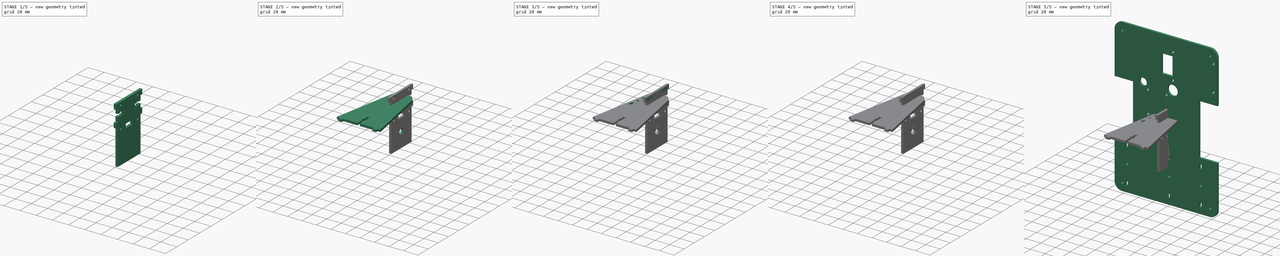
[diagram: build sequence overview — one tinted view per stage of 5, left to right]
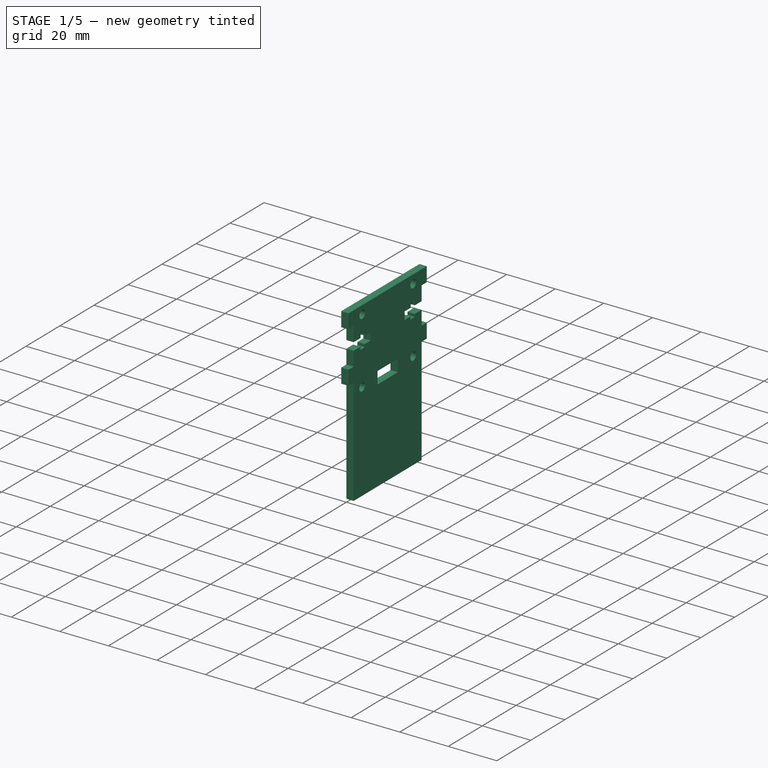
[diagram: stage 1 of 5 — iso view after this stage's code; geometry added in this stage tinted green]
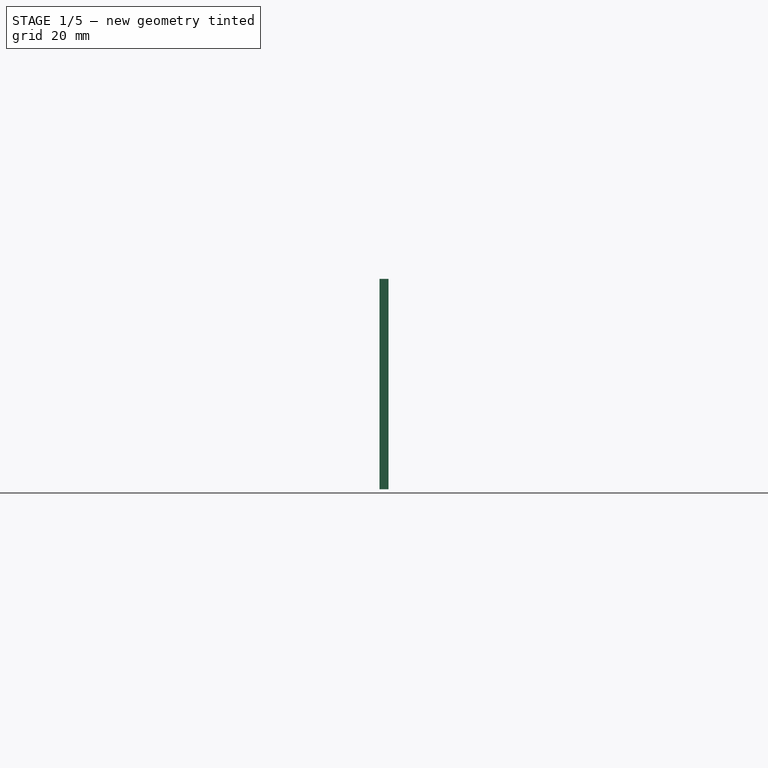
[diagram: stage 1 of 5 — front view after this stage's code; geometry added in this stage tinted green]
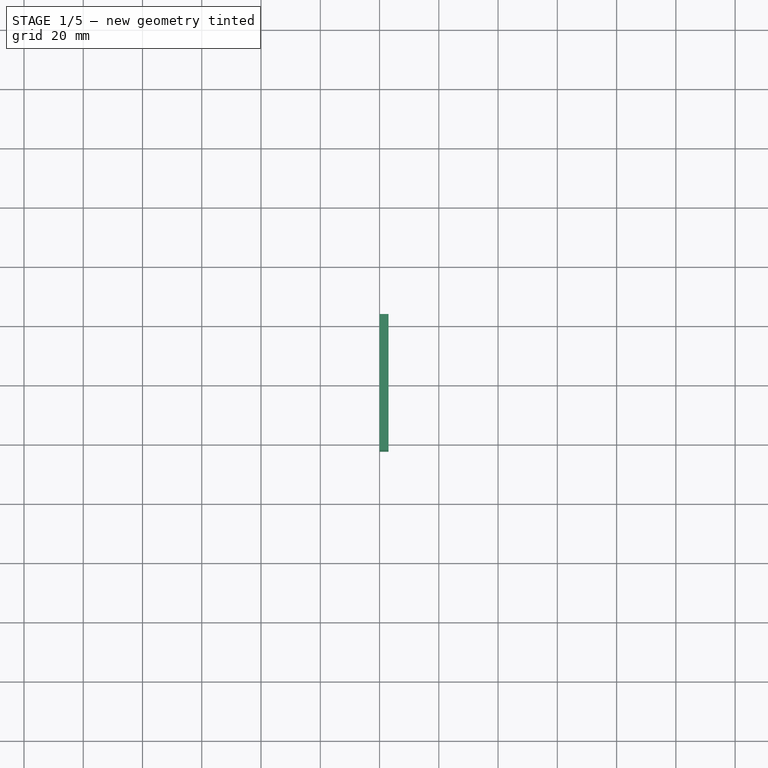
[diagram: stage 1 of 5 — top view after this stage's code; geometry added in this stage tinted green]
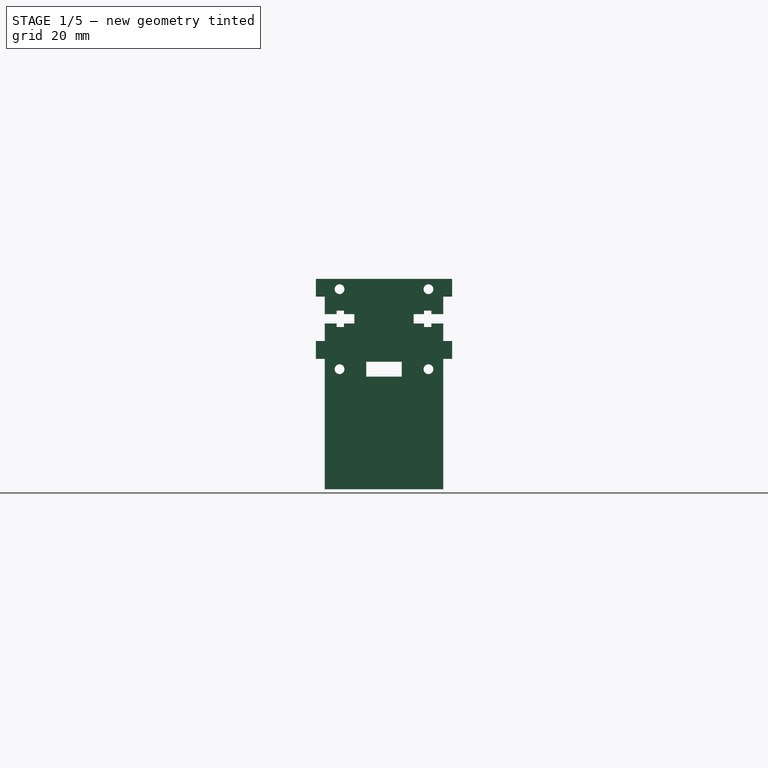
[diagram: stage 1 of 5 — right view after this stage's code; geometry added in this stage tinted green]
FCSTD DOCUMENT  (FreeCAD 0.18.4R)
Label: mount
License: All rights reserved
LicenseURL: http://en.wikipedia.org/wiki/All_rights_reserved
objects: Sketcher::SketchObject×29, PartDesign::Pocket×16, PartDesign::Pad×13, PartDesign::Body×7, TechDraw::DrawViewPart×6, PartDesign::Mirrored×6, PartDesign::FeatureBase×2, PartDesign::ShapeBinder×2, TechDraw::DrawSVGTemplate×2, PartDesign::MultiTransform×2, TechDraw::DrawPage×2, Spreadsheet::Sheet×1
note: 106 computed .brp shape members not serialized (recipe doc carries the construction recipe); baked Part::Feature solids carry a one-line shape summary decoded from their .brp

FEATURE [PartDesign::Body] Body004  label="Headset mount"
  BaseFeature = -> Pocket008
  Group = -> [Clone001,Sketch018,Pocket011,Sketch023,Pad009]
  Origin = -> Origin004
  Placement = pos=(0,0,-43) rot=(0,0,1;0rad)
  Tip = -> Pad009
FEATURE [TechDraw::DrawViewPart] View004
  CoarseView = false
  Direction = (0,0,1)
  Focus = 100
  HardHidden = false
  IsoCount = 0
  IsoHidden = false
  IsoVisible = false
  LockPosition = false
  Perspective = false
  Rotation = 0
  ScaleType = 0
  SeamHidden = false
  SeamVisible = false
  SmoothHidden = false
  SmoothVisible = false
  Source = -> [Pad009]
  X = 55.4504
  Y = 137.522
FEATURE [TechDraw::DrawPage] Page
  KeepUpdated = true
  ProjectionType = 0
  Template = -> Template
  Views = -> [View,View001,View002,View003,View004]
FEATURE [Sketcher::SketchObject] Sketch024
  MapMode = 5
  Placement = pos=(0,0,0) rot=(0.57735,0.57735,0.57735;2.0944rad)
  Support = -> [YZ_Plane006]
  sketch-geometry (5):
    g0: LineSegment StartX=-20 StartY=13.5 StartZ=0 EndX=20 EndY=13.5 EndZ=0
    g1: LineSegment StartX=20 StartY=13.5 StartZ=0 EndX=20 EndY=-13.5 EndZ=0
    g2: LineSegment StartX=20 StartY=-13.5 StartZ=0 EndX=-20 EndY=-13.5 EndZ=0
    g3: LineSegment StartX=-20 StartY=-13.5 StartZ=0 EndX=-20 EndY=13.5 EndZ=0
    g4: Circle CenterX=0 CenterY=8.5 CenterZ=0 NormalX=0 NormalY=0 NormalZ=1 AngleXU=0 Radius=1.9
  constraints (14):
    c: Coincident(g0,g1)
    c: Coincident(g1,g2)
    c: Coincident(g2,g3)
    c: Coincident(g3,g0)
    c: Horizontal(g0)
    c: Horizontal(g2)
    c: Vertical(g1)
    c: Vertical(g3)
    c: Symmetric(g2,g0,g-1)
    c: DistanceY(g3,g3) = 27
    c: DistanceX(g0,g0) = 40
    c: PointOnObject(g4,g-2)
    c: Diameter(g4) = 3.8
    c: DistanceY(g4,g0) = 5
FEATURE [PartDesign::Pad] Pad010
  Length = 3
  Length2 = 100
  Placement = pos=(0,0,0) rot=(0.57735,0.57735,0.57735;2.0944rad)
  Profile = -> Sketch024
  Refine = true
  Type = 0
FEATURE [Sketcher::SketchObject] Sketch025
  ExternalGeometry = -> [Pad010]
  MapMode = 5
  Placement = pos=(3,-7e-16,7e-16) rot=(0.57735,0.57735,0.57735;2.0944rad)
  Support = -> [Pad010]
  sketch-geometry (4):
    g0: LineSegment StartX=-20 StartY=13.5 StartZ=0 EndX=-23 EndY=13.5 EndZ=0
    g1: LineSegment StartX=-23 StartY=13.5 StartZ=0 EndX=-23 EndY=7.5 EndZ=0
    g2: LineSegment StartX=-23 StartY=7.5 StartZ=0 EndX=-20 EndY=7.5 EndZ=0
    g3: LineSegment StartX=-20 StartY=7.5 StartZ=0 EndX=-20 EndY=13.5 EndZ=0
  constraints (11):
    c: Coincident(g0,g1)
    c: Coincident(g1,g2)
    c: Coincident(g2,g3)
    c: Coincident(g3,g0)
    c: Horizontal(g0)
    c: Horizontal(g2)
    c: Vertical(g1)
    c: Vertical(g3)
    c: Coincident(g0,g-3)
    c: DistanceY(g1,g1) = 6
    c: DistanceX(g0,g0) = 3
FEATURE [PartDesign::Mirrored] Mirrored003
  MirrorPlane = -> Sketch025 [V_Axis]
  Placement = pos=(0,0,0) rot=(0.57735,0.57735,0.57735;2.0944rad)
  Refine = true
FEATURE [PartDesign::Pad] Pad011
  BaseFeature = -> Pad010
  Length = 3
  Length2 = 100
  Placement = pos=(0,0,0) rot=(0.57735,0.57735,0.57735;2.0944rad)
  Profile = -> Sketch025
  Refine = true
  Reversed = true
  Type = 0
FEATURE [PartDesign::Mirrored] Mirrored005
  MirrorPlane = -> Sketch025 [H_Axis]
  Placement = pos=(0,0,0) rot=(0.57735,0.57735,0.57735;2.0944rad)
  Refine = true
FEATURE [PartDesign::MultiTransform] MultiTransform001
  BaseFeature = -> Pad011
  Originals = -> [Pad011]
  Placement = pos=(0,0,0) rot=(0.57735,0.57735,0.57735;2.0944rad)
  Refine = true
  Transformations = -> [Mirrored003,Mirrored005]
FEATURE [Sketcher::SketchObject] Sketch026
  ExternalGeometry = -> [MultiTransform001]
  MapMode = 5
  Placement = pos=(3,-9e-16,2.4e-15) rot=(0.57735,0.57735,0.57735;2.0944rad)
  Support = -> [MultiTransform001]
  sketch-geometry (12):
    g0: LineSegment StartX=-20 StartY=1.6 StartZ=0 EndX=-16 EndY=1.6 EndZ=0
    g1: LineSegment StartX=-10 StartY=1.6 StartZ=0 EndX=-10 EndY=-1.6 EndZ=0
    g2: LineSegment StartX=-10 StartY=-1.6 StartZ=0 EndX=-13.5 EndY=-1.6 EndZ=0
    g3: LineSegment StartX=-20 StartY=-1.6 StartZ=0 EndX=-20 EndY=1.6 EndZ=0
    g4: LineSegment StartX=-16 StartY=2.75 StartZ=0 EndX=-13.5 EndY=2.75 EndZ=0
    g5: LineSegment StartX=-13.5 StartY=2.75 StartZ=0 EndX=-13.5 EndY=1.6 EndZ=0
    g6: LineSegment StartX=-13.5 StartY=-2.75 StartZ=0 EndX=-16 EndY=-2.75 EndZ=0
    g7: LineSegment StartX=-16 StartY=-2.75 StartZ=0 EndX=-16 EndY=-1.6 EndZ=0
    g8: LineSegment StartX=-13.5 StartY=1.6 StartZ=0 EndX=-10 EndY=1.6 EndZ=0
    g9: LineSegment StartX=-16 StartY=1.6 StartZ=0 EndX=-16 EndY=2.75 EndZ=0
    g10: LineSegment StartX=-16 StartY=-1.6 StartZ=0 EndX=-20 EndY=-1.6 EndZ=0
    g11: LineSegment StartX=-13.5 StartY=-1.6 StartZ=0 EndX=-13.5 EndY=-2.75 EndZ=0
  constraints (30):
    c: Coincident(g8,g1)
    c: Coincident(g1,g2)
    c: Coincident(g10,g3)
    c: Coincident(g3,g0)
    c: Horizontal(g0)
    c: Horizontal(g2)
    c: Vertical(g3)
    c: PointOnObject(g0,g-3)
    c: Symmetric(g1,g8,g-1)
    c: DistanceX(g0,g8) = 10
    c: DistanceY(g3,g3) = 3.2
    c: Coincident(g4,g5)
    c: Coincident(g11,g6)
    c: Coincident(g6,g7)
    c: Coincident(g9,g4)
    c: Horizontal(g4)
    c: Horizontal(g6)
    c: Vertical(g7)
    c: Symmetric(g4,g11,g-1)
    c: DistanceX(g4,g4) = 2.5
    c: DistanceY(g7,g9) = 5.5
    c: DistanceX(g0,g4) = 4
    c: Tangent(g0,g8)
    c: Coincident(g9,g0)
    c: Tangent(g7,g9)
    c: Coincident(g10,g7)
    c: Tangent(g2,g10)
    c: Coincident(g5,g8)
    c: Coincident(g11,g2)
    c: Tangent(g5,g11)
FEATURE [PartDesign::Pocket] Pocket014
  BaseFeature = -> MultiTransform001
  Length = 5
  Length2 = 100
  Placement = pos=(0,0,0) rot=(0.57735,0.57735,0.57735;2.0944rad)
  Profile = -> Sketch026
  Refine = true
  Type = 1
FEATURE [PartDesign::Mirrored] Mirrored004
  BaseFeature = -> Pocket014
  MirrorPlane = -> Sketch026 [V_Axis]
  Originals = -> [Pocket014]
  Placement = pos=(0,0,0) rot=(0.57735,0.57735,0.57735;2.0944rad)
  Refine = true
FEATURE [Sketcher::SketchObject] Sketch027
  ExternalGeometry = -> [Mirrored004]
  MapMode = 5
  Placement = pos=(3e-16,0,0) rot=(0.57735,0.57735,-0.57735;4.18879rad)
  Support = -> [Mirrored004]
  sketch-geometry (5):
    g0: Circle CenterX=0 CenterY=-8.5 CenterZ=0 NormalX=0 NormalY=0 NormalZ=1 AngleXU=0 Radius=4.5
    g1: LineSegment StartX=-20 StartY=7.5 StartZ=0 EndX=20 EndY=7.5 EndZ=0
    g2: LineSegment StartX=20 StartY=7.5 StartZ=0 EndX=20 EndY=57.5 EndZ=0
    g3: LineSegment StartX=20 StartY=57.5 StartZ=0 EndX=-20 EndY=57.5 EndZ=0
    g4: LineSegment StartX=-20 StartY=57.5 StartZ=0 EndX=-20 EndY=7.5 EndZ=0
  constraints (12):
    c: Coincident(g0,g-5)
    c: Radius(g0) = 4.5
    c: Coincident(g1,g2)
    c: Coincident(g2,g3)
    c: Coincident(g3,g4)
    c: Coincident(g4,g1)
    c: Horizontal(g3)
    c: Vertical(g2)
    c: Vertical(g4)
    c: Coincident(g1,g-3)
    c: Coincident(g-4,g1)
    c: DistanceY(g2,g2) = 50
FEATURE [PartDesign::Pad] Pad012
  BaseFeature = -> Mirrored004
  Length = 3
  Length2 = 100
  Placement = pos=(0,0,0) rot=(0.57735,0.57735,0.57735;2.0944rad)
  Profile = -> Sketch027
  Refine = true
  Reversed = true
  Type = 0
FEATURE [Sketcher::SketchObject] Sketch028
  MapMode = 5
  Placement = pos=(1.3e-15,0,0) rot=(0.57735,0.57735,-0.57735;4.18879rad)
  Support = -> [Pad012]
  sketch-geometry (13):
    g0: LineSegment [constr] StartX=-15 StartY=17 StartZ=0 EndX=15 EndY=17 EndZ=0
    g1: LineSegment [constr] StartX=15 StartY=17 StartZ=0 EndX=15 EndY=-10 EndZ=0
    g2: LineSegment [constr] StartX=15 StartY=-10 StartZ=0 EndX=-15 EndY=-10 EndZ=0
    g3: LineSegment [constr] StartX=-15 StartY=-10 StartZ=0 EndX=-15 EndY=17 EndZ=0
    g4: Circle CenterX=-15 CenterY=17 CenterZ=0 NormalX=0 NormalY=0 NormalZ=1 AngleXU=0 Radius=1.65
    g5: Circle CenterX=15 CenterY=17 CenterZ=0 NormalX=0 NormalY=0 NormalZ=1 AngleXU=0 Radius=1.65
    g6: Circle CenterX=15 CenterY=-10 CenterZ=0 NormalX=0 NormalY=0 NormalZ=1 AngleXU=0 Radius=1.65
    g7: Circle CenterX=-15 CenterY=-10 CenterZ=0 NormalX=0 NormalY=0 NormalZ=1 AngleXU=0 Radius=1.65
    g8: GeomPoint X=0 Y=17 Z=0
    g9: LineSegment StartX=-6 StartY=19.5 StartZ=0 EndX=6 EndY=19.5 EndZ=0
    g10: LineSegment StartX=6 StartY=19.5 StartZ=0 EndX=6 EndY=14.5 EndZ=0
    g11: LineSegment StartX=6 StartY=14.5 StartZ=0 EndX=-6 EndY=14.5 EndZ=0
    g12: LineSegment StartX=-6 StartY=14.5 StartZ=0 EndX=-6 EndY=19.5 EndZ=0
  constraints (32):
    c: Coincident(g0,g1)
    c: Coincident(g1,g2)
    c: Coincident(g2,g3)
    c: Coincident(g3,g0)
    c: Horizontal(g2)
    c: Vertical(g1)
    c: Vertical(g3)
    c: DistanceX(g0,g0) = 30
    c: DistanceY(g3,g3) = 27
    c: Symmetric(g0,g0,g-2)
    c: DistanceY(g2,g-1) = 10
    c: Coincident(g4,g0)
    c: Coincident(g5,g0)
    c: Coincident(g6,g1)
    c: Coincident(g7,g2)
    c: Equal(g4,g5)
    c: Equal(g5,g6)
    c: Equal(g6,g7)
    c: Diameter(g4) = 3.3
    c: PointOnObject(g8,g0)
    c: PointOnObject(g8,g-2)
    c: Coincident(g9,g10)
    c: Coincident(g10,g11)
    c: Coincident(g11,g12)
    c: Coincident(g12,g9)
    c: Horizontal(g9)
    c: Horizontal(g11)
    c: Vertical(g10)
    c: Vertical(g12)
    c: Symmetric(g9,g11,g8)
    c: DistanceX(g11,g11) = 12
    c: DistanceY(g12,g12) = 5
FEATURE [PartDesign::Pocket] Pocket015
  BaseFeature = -> Pad012
  Length = 5
  Length2 = 100
  Placement = pos=(0,0,0) rot=(0.57735,0.57735,0.57735;2.0944rad)
  Profile = -> Sketch028
  Refine = true
  Type = 1
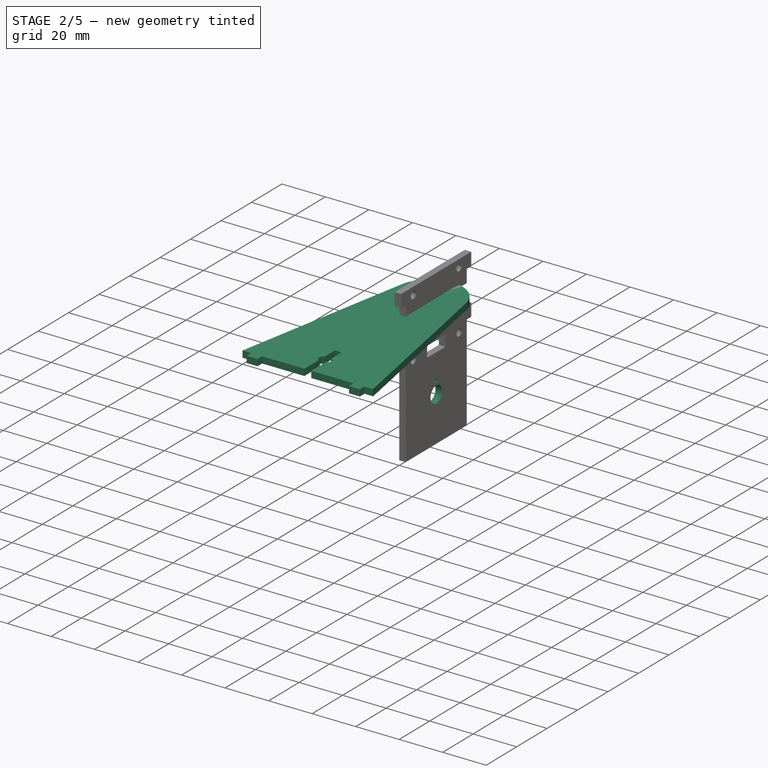
[diagram: stage 2 of 5 — iso view after this stage's code; geometry added in this stage tinted green]
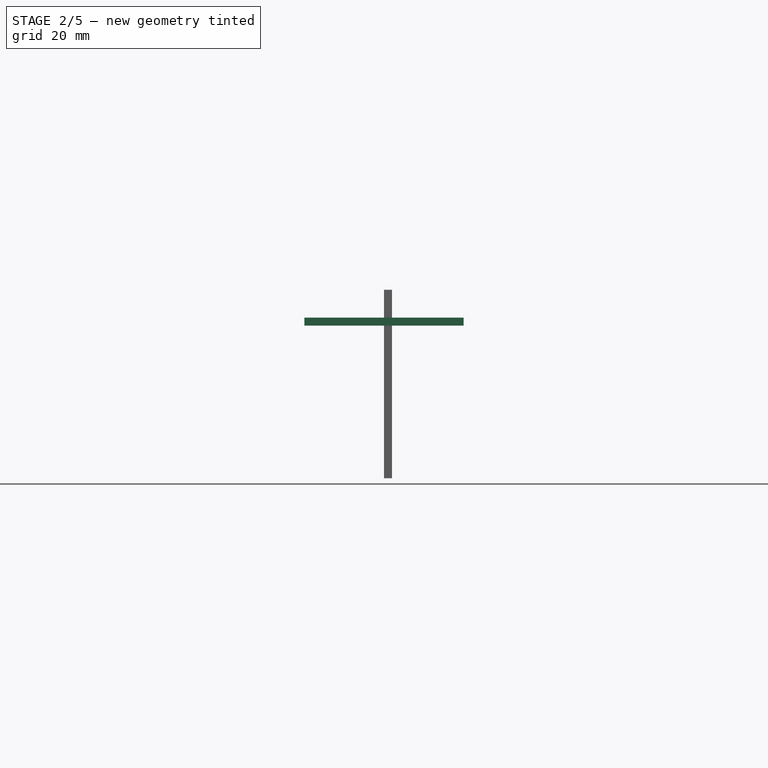
[diagram: stage 2 of 5 — front view after this stage's code; geometry added in this stage tinted green]
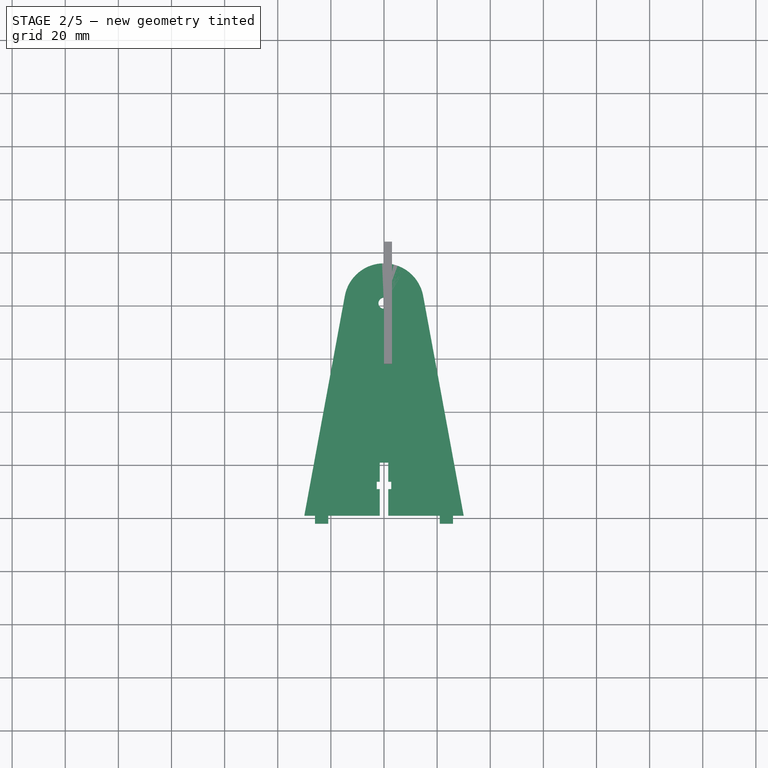
[diagram: stage 2 of 5 — top view after this stage's code; geometry added in this stage tinted green]
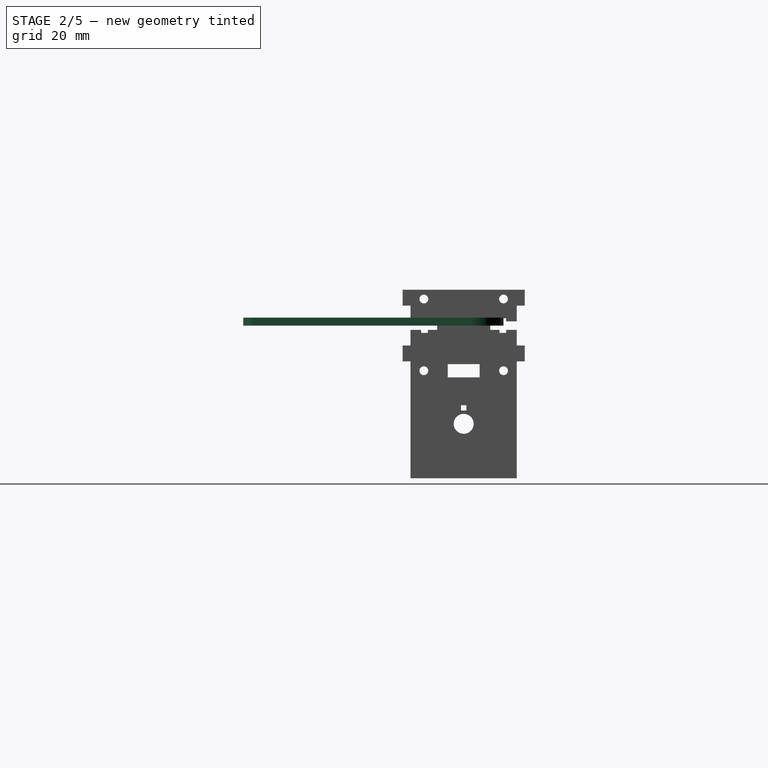
[diagram: stage 2 of 5 — right view after this stage's code; geometry added in this stage tinted green]
FEATURE [PartDesign::Body] Body  label="Servo"
  Group = -> [Sketch,Pad,Sketch001,Pad001,Sketch002,Pad002,Sketch003,Pad003,Sketch004,Pocket]
  Origin = -> Origin
  Placement = pos=(0,0,-1) rot=(0,0,1;0rad)
  Tip = -> Pocket
FEATURE [Spreadsheet::Sheet] Spreadsheet  label="Values"
  cells = A1=Mount Height; B1(mnt_height)=80; A2=Mount Width; B2(mnt_width)=54; A3=Mount Lenght; B3(mnt_length)=60; A5=Base Width; B5(base_width)=119.38; A6=Base Length; B6(base_length)=187.04
FEATURE [Sketcher::SketchObject] Sketch005
  MapMode = 5
  Support = -> [XY_Plane001]
  expr: Constraints[4] = Values.mnt_height
  expr: Constraints[5] = Values.mnt_length
  sketch-geometry (4):
    g0: ArcOfCircle CenterX=0 CenterY=0 CenterZ=0 NormalX=0 NormalY=0 NormalZ=1 AngleXU=0 Radius=15 StartAngle=0.182294 EndAngle=2.9593
    g1: LineSegment StartX=-14.7515 StartY=2.7193 StartZ=0 EndX=-30 EndY=-80 EndZ=0
    g2: LineSegment StartX=-30 StartY=-80 StartZ=0 EndX=30 EndY=-80 EndZ=0
    g3: LineSegment StartX=30 StartY=-80 StartZ=0 EndX=14.7515 EndY=2.7193 EndZ=0
  constraints (9):
    c: Coincident(g0,g-1)
    c: Coincident(g1,g2)
    c: Coincident(g2,g3)
    c: Symmetric(g1,g2,g-2)
    c: DistanceY(g2,g0) = 80
    c: DistanceX(g2,g2) = 60
    c: Diameter(g0) = 30
    c: Tangent(g0,g1) = -1.5708
    c: Tangent(g3,g0) = -1.5708
FEATURE [PartDesign::Pad] Pad004
  Length = 3
  Length2 = 100
  Profile = -> Sketch005
  Refine = true
  Type = 0
FEATURE [Sketcher::SketchObject] Sketch006
  ExternalGeometry = -> [Pad004]
  MapMode = 5
  Support = -> [XY_Plane001]
  sketch-geometry (8):
    g0: LineSegment StartX=-26 StartY=-80 StartZ=0 EndX=-21 EndY=-80 EndZ=0
    g1: LineSegment StartX=-21 StartY=-80 StartZ=0 EndX=-21 EndY=-83 EndZ=0
    g2: LineSegment StartX=-21 StartY=-83 StartZ=0 EndX=-26 EndY=-83 EndZ=0
    g3: LineSegment StartX=-26 StartY=-83 StartZ=0 EndX=-26 EndY=-80 EndZ=0
    g4: LineSegment StartX=21 StartY=-80 StartZ=0 EndX=26 EndY=-80 EndZ=0
    g5: LineSegment StartX=26 StartY=-80 StartZ=0 EndX=26 EndY=-83 EndZ=0
    g6: LineSegment StartX=26 StartY=-83 StartZ=0 EndX=21 EndY=-83 EndZ=0
    g7: LineSegment StartX=21 StartY=-83 StartZ=0 EndX=21 EndY=-80 EndZ=0
  constraints (23):
    c: Coincident(g0,g1)
    c: Coincident(g1,g2)
    c: Coincident(g2,g3)
    c: Coincident(g3,g0)
    c: Horizontal(g0)
    c: Horizontal(g2)
    c: Vertical(g1)
    c: Vertical(g3)
    c: Coincident(g4,g5)
    c: Coincident(g5,g6)
    c: Coincident(g6,g7)
    c: Coincident(g7,g4)
    c: Horizontal(g4)
    c: Horizontal(g6)
    c: Vertical(g5)
    c: Vertical(g7)
    c: Symmetric(g1,g6,g-2)
    c: Equal(g2,g6)
    c: PointOnObject(g0,g-3)
    c: PointOnObject(g4,g-3)
    c: DistanceX(g-3,g2) = 4
    c: DistanceX(g2,g2) = 5
    c: DistanceY(g1,g1) = 3
FEATURE [PartDesign::Pad] Pad005
  BaseFeature = -> Pad004
  Length = 3
  Length2 = 100
  Profile = -> Sketch006
  Refine = true
  Type = 0
FEATURE [PartDesign::FeatureBase] Clone
  BaseFeature = -> Pad005
FEATURE [Sketcher::SketchObject] Sketch007
  MapMode = 5
  Placement = pos=(0,0,3) rot=(0,0,1;0rad)
  Support = -> [Clone]
  sketch-geometry (1):
    g0: Circle CenterX=0 CenterY=0 CenterZ=0 NormalX=0 NormalY=0 NormalZ=1 AngleXU=0 Radius=2.1
  constraints (2):
    c: Coincident(g0,g-1)
    c: Diameter(g0) = 4.2
FEATURE [PartDesign::Pocket] Pocket001
  BaseFeature = -> Clone
  Length = 5
  Length2 = 100
  Profile = -> Sketch007
  Refine = true
  Type = 1
FEATURE [Sketcher::SketchObject] Sketch015
  ExternalGeometry = -> [Pocket001]
  MapMode = 5
  Placement = pos=(0,0,3) rot=(0,0,1;0rad)
  Support = -> [Pocket001]
  sketch-geometry (12):
    g0: LineSegment StartX=-1.6 StartY=-80 StartZ=0 EndX=1.6 EndY=-80 EndZ=0
    g1: LineSegment StartX=1.6 StartY=-80 StartZ=0 EndX=1.6 EndY=-70 EndZ=0
    g2: LineSegment StartX=1.6 StartY=-60 StartZ=0 EndX=-1.6 EndY=-60 EndZ=0
    g3: LineSegment StartX=-1.6 StartY=-60 StartZ=0 EndX=-1.6 EndY=-67.2 EndZ=0
    g4: LineSegment StartX=-2.75 StartY=-67.2 StartZ=0 EndX=-1.6 EndY=-67.2 EndZ=0
    g5: LineSegment StartX=2.75 StartY=-67.2 StartZ=0 EndX=2.75 EndY=-70 EndZ=0
    g6: LineSegment StartX=2.75 StartY=-70 StartZ=0 EndX=1.6 EndY=-70 EndZ=0
    g7: LineSegment StartX=-2.75 StartY=-70 StartZ=0 EndX=-2.75 EndY=-67.2 EndZ=0
    g8: LineSegment StartX=1.6 StartY=-67.2 StartZ=0 EndX=2.75 EndY=-67.2 EndZ=0
    g9: LineSegment StartX=-1.6 StartY=-70 StartZ=0 EndX=-1.6 EndY=-80 EndZ=0
    g10: LineSegment StartX=-1.6 StartY=-70 StartZ=0 EndX=-2.75 EndY=-70 EndZ=0
    g11: LineSegment StartX=1.6 StartY=-67.2 StartZ=0 EndX=1.6 EndY=-60 EndZ=0
  constraints (30):
    c: Coincident(g0,g1)
    c: Coincident(g11,g2)
    c: Coincident(g2,g3)
    c: Coincident(g9,g0)
    c: Horizontal(g0)
    c: Vertical(g1)
    c: Vertical(g3)
    c: PointOnObject(g0,g-3)
    c: Symmetric(g11,g2,g-2)
    c: DistanceX(g2,g2) = 3.2
    c: DistanceY(g9,g3) = 20
    c: Coincident(g8,g5)
    c: Coincident(g5,g6)
    c: Coincident(g10,g7)
    c: Coincident(g7,g4)
    c: Horizontal(g6)
    c: Vertical(g5)
    c: Vertical(g7)
    c: Symmetric(g8,g4,g-2)
    c: DistanceX(g10,g6) = 5.5
    c: DistanceY(g5,g5) = 2.8
    c: DistanceY(g0,g5) = 10
    c: Tangent(g4,g8)
    c: Coincident(g3,g4)
    c: Tangent(g3,g9)
    c: Coincident(g10,g9)
    c: Tangent(g6,g10)
    c: Coincident(g1,g6)
    c: Coincident(g11,g8)
    c: Tangent(g1,g11)
FEATURE [PartDesign::Pocket] Pocket008
  BaseFeature = -> Pocket001
  Length = 5
  Length2 = 100
  Profile = -> Sketch015
  Refine = true
  Type = 1
FEATURE [PartDesign::Body] Body003  label="Base"
  Group = -> [Sketch009,Pad006,Sketch010,Pocket003,Sketch011,Pocket004,Sketch012,Pocket005,Sketch013,Pocket006,Sketch017,Pocket010]
  Origin = -> Origin003
  Placement = pos=(69,-83,5) rot=(0,1,0;1.5708rad)
  Tip = -> Pocket010
FEATURE [TechDraw::DrawViewPart] View002
  CoarseView = false
  Direction = (0,-1,0)
  Focus = 100
  HardHidden = false
  IsoCount = 0
  IsoHidden = false
  IsoVisible = false
  LockPosition = false
  Perspective = false
  Rotation = 0
  ScaleType = 0
  SeamHidden = false
  SeamVisible = false
  SmoothHidden = false
  SmoothVisible = false
  Source = -> [Body003]
  X = 190.648
  Y = 137.112
FEATURE [PartDesign::FeatureBase] Clone001
  BaseFeature = -> Pocket008
FEATURE [Sketcher::SketchObject] Sketch029
  ExternalGeometry = -> [Pocket015]
  MapMode = 5
  Placement = pos=(-6e-16,0,0) rot=(0.57735,0.57735,-0.57735;4.18879rad)
  Support = -> [Pocket015]
  sketch-geometry (5):
    g0: Circle CenterX=0 CenterY=37 CenterZ=0 NormalX=0 NormalY=0 NormalZ=1 AngleXU=0 Radius=3.75
    g1: LineSegment StartX=-1 StartY=32 StartZ=0 EndX=1 EndY=32 EndZ=0
    g2: LineSegment StartX=1 StartY=32 StartZ=0 EndX=1 EndY=30 EndZ=0
    g3: LineSegment StartX=1 StartY=30 StartZ=0 EndX=-1 EndY=30 EndZ=0
    g4: LineSegment StartX=-1 StartY=30 StartZ=0 EndX=-1 EndY=32 EndZ=0
  constraints (14):
    c: PointOnObject(g0,g-2)
    c: Diameter(g0) = 7.5
    c: DistanceY(g-3,g0) = 20
    c: Coincident(g1,g2)
    c: Coincident(g2,g3)
    c: Coincident(g3,g4)
    c: Coincident(g4,g1)
    c: Horizontal(g1)
    c: Vertical(g2)
    c: Vertical(g4)
    c: Symmetric(g2,g3,g-2)
    c: DistanceX(g3,g3) = 2
    c: DistanceY(g2,g2) = 2
    c: DistanceY(g1,g0) = 5
FEATURE [PartDesign::Pocket] Pocket016
  BaseFeature = -> Pocket015
  Length = 5
  Length2 = 100
  Placement = pos=(0,0,0) rot=(0.57735,0.57735,0.57735;2.0944rad)
  Profile = -> Sketch029
  Refine = true
  Type = 1
FEATURE [PartDesign::Body] Body006  label="headset plank 2"
  Group = -> [Sketch024,Pad010,Sketch025,Pad011,MultiTransform001,Mirrored003,Mirrored005,Sketch026,Pocket014,Mirrored004,Sketch027,Pad012,Sketch028,Pocket015,Sketch029,Pocket016]
  Origin = -> Origin006
  Placement = pos=(-14.7217,-14.6897,-20) rot=(-0.992433,0.086827,-0.086827;0rad)
  Tip = -> Pocket016
FEATURE [TechDraw::DrawSVGTemplate] Template001
  Height = 210
  Orientation = 1
  Width = 297
FEATURE [TechDraw::DrawViewPart] View005
  CoarseView = false
  Direction = (1,0,0)
  Focus = 100
  HardHidden = false
  IsoCount = 0
  IsoHidden = false
  IsoVisible = false
  LockPosition = false
  Perspective = false
  Rotation = 0
  ScaleType = 0
  SeamHidden = false
  SeamVisible = false
  SmoothHidden = false
  SmoothVisible = false
  Source = -> [Body006]
  X = 148.5
  Y = 105
FEATURE [TechDraw::DrawPage] Page001
  KeepUpdated = true
  ProjectionType = 0
  Template = -> Template001
  Views = -> [View005]
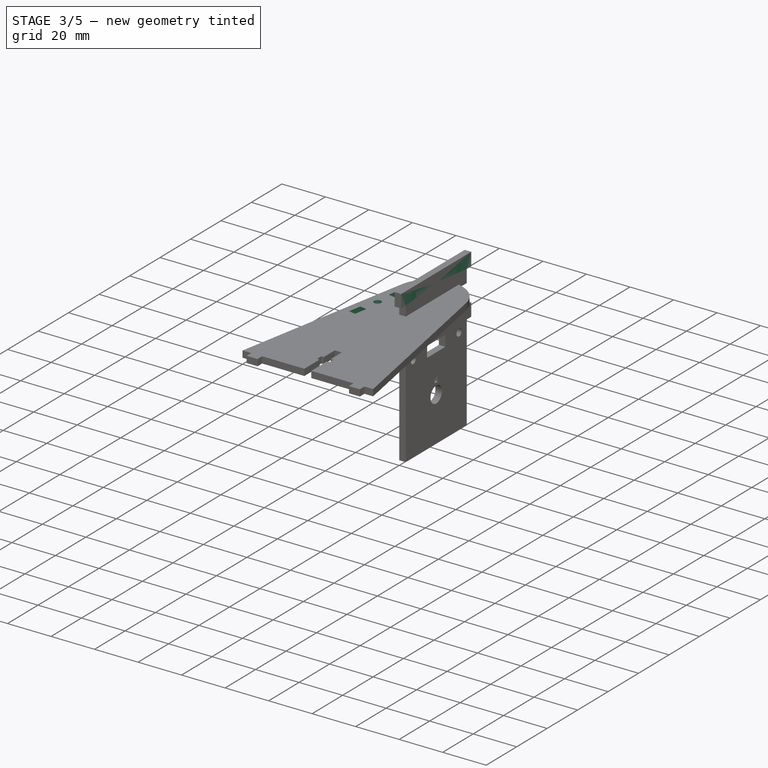
[diagram: stage 3 of 5 — iso view after this stage's code; geometry added in this stage tinted green]
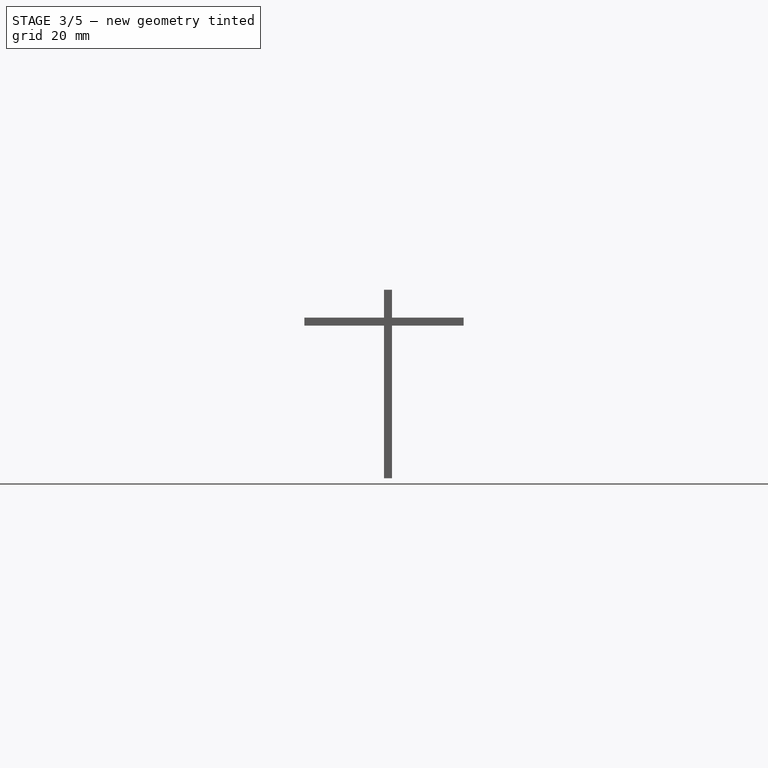
[diagram: stage 3 of 5 — front view after this stage's code; geometry added in this stage tinted green]
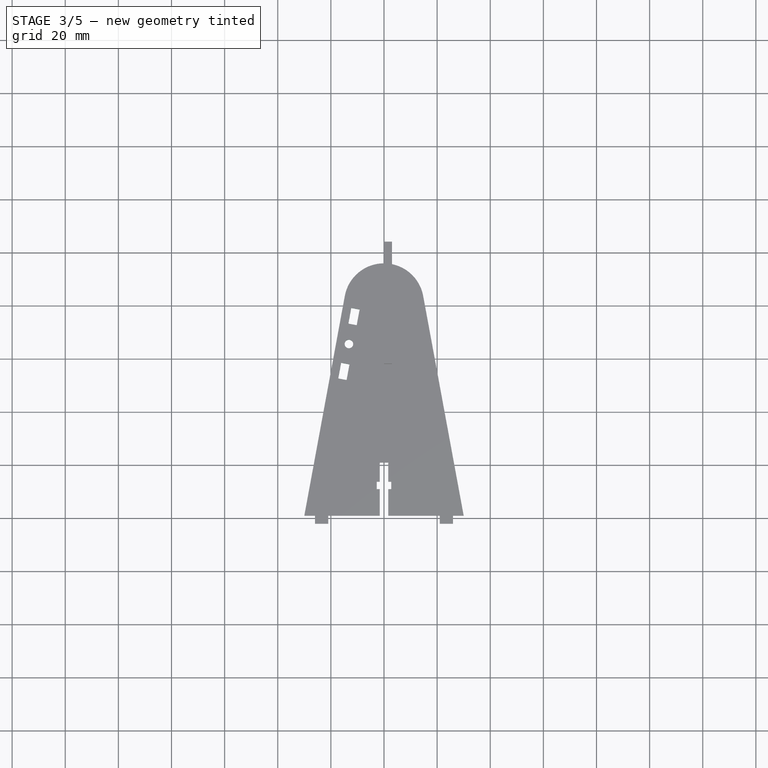
[diagram: stage 3 of 5 — top view after this stage's code; geometry added in this stage tinted green]
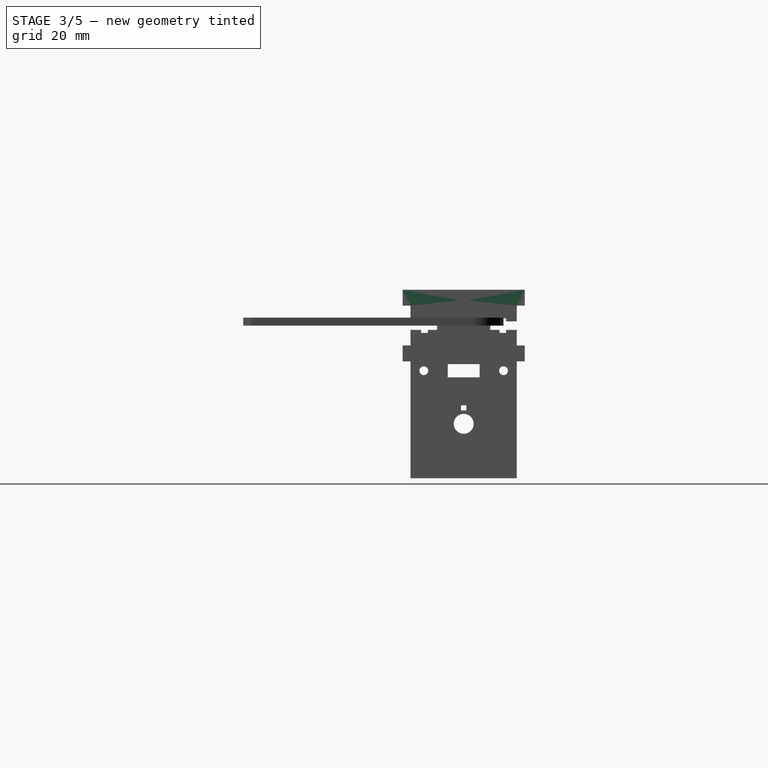
[diagram: stage 3 of 5 — right view after this stage's code; geometry added in this stage tinted green]
FEATURE [Sketcher::SketchObject] Sketch018
  ExternalGeometry = -> [Clone001]
  MapMode = 5
  Placement = pos=(0,0,3) rot=(0,0,1;0rad)
  Support = -> [Clone001]
  sketch-geometry (11):
    g0: LineSegment StartX=-12.3296 StartY=-1.79454 StartZ=0 EndX=-9.18265 EndY=-2.37466 EndZ=0
    g1: LineSegment StartX=-9.18265 StartY=-2.37466 StartZ=0 EndX=-10.2704 EndY=-8.27524 EndZ=0
    g2: LineSegment StartX=-10.2704 StartY=-8.27524 StartZ=0 EndX=-13.4173 EndY=-7.69512 EndZ=0
    g3: LineSegment StartX=-13.4173 StartY=-7.69512 StartZ=0 EndX=-12.3296 EndY=-1.79454 EndZ=0
    g4: GeomPoint X=-16.5643 Y=-7.11501 Z=0
    g5: LineSegment StartX=-16.1366 StartY=-22.4466 StartZ=0 EndX=-12.9897 EndY=-23.0267 EndZ=0
    g6: LineSegment StartX=-12.9897 StartY=-23.0267 StartZ=0 EndX=-14.0774 EndY=-28.9273 EndZ=0
    g7: LineSegment StartX=-14.0774 StartY=-28.9273 StartZ=0 EndX=-17.2244 EndY=-28.3472 EndZ=0
    g8: LineSegment StartX=-17.2244 StartY=-28.3472 StartZ=0 EndX=-16.1366 EndY=-22.4466 EndZ=0
    g9: GeomPoint X=-19.2836 Y=-21.8665 Z=0
    g10: Circle CenterX=-13.2035 CenterY=-15.3609 CenterZ=0 NormalX=0 NormalY=0 NormalZ=1 AngleXU=0 Radius=1.6
  constraints (28):
    c: Coincident(g0,g1)
    c: Coincident(g1,g2)
    c: Coincident(g2,g3)
    c: Coincident(g3,g0)
    c: Parallel(g1,g3)
    c: Parallel(g3,g-3)
    c: Parallel(g0,g2)
    c: Perpendicular(g3,g0)
    c: Distance(g2) = 3.2
    c: Distance(g1) = 6
    c: PointOnObject(g4,g-3)
    c: Symmetric(g1,g4,g2)
    c: Coincident(g5,g6)
    c: Coincident(g6,g7)
    c: Coincident(g7,g8)
    c: Coincident(g8,g5)
    c: Parallel(g6,g8)
    c: Parallel(g5,g7)
    c: Perpendicular(g8,g5)
    c: Equal(g2,g7) = 3.2
    c: Equal(g1,g6) = 6
    c: Parallel(g8,g-3)
    c: PointOnObject(g9,g-3)
    c: Symmetric(g5,g9,g5)
    c: Distance(g4,g9) = 15
    c: Distance(g4,g-3) = 10
    c: Diameter(g10) = 3.2
    c: Symmetric(g1,g5,g10)
FEATURE [PartDesign::Pocket] Pocket011
  BaseFeature = -> Clone001
  Length = 5
  Length2 = 100
  Profile = -> Sketch018
  Refine = true
  Type = 1
FEATURE [PartDesign::Body] Body001  label="Servo mount"
  Group = -> [Sketch005,Pad004,Sketch006,Pad005,ShapeBinder,Sketch008,Pocket002,Sketch016,Pocket009,ShapeBinder001,Sketch019,Pocket012]
  Origin = -> Origin001
  Tip = -> Pocket012
FEATURE [TechDraw::DrawViewPart] View
  CoarseView = false
  Direction = (0,0,1)
  Focus = 100
  HardHidden = false
  IsoCount = 0
  IsoHidden = false
  IsoVisible = false
  LockPosition = false
  Perspective = false
  Rotation = 90
  ScaleType = 0
  SeamHidden = false
  SeamVisible = false
  SmoothHidden = false
  SmoothVisible = false
  Source = -> [Body001]
  X = 240.268
  Y = 36.7073
FEATURE [Sketcher::SketchObject] Sketch020
  MapMode = 5
  Placement = pos=(0,0,0) rot=(0.57735,0.57735,0.57735;2.0944rad)
  Support = -> [YZ_Plane005]
  sketch-geometry (5):
    g0: LineSegment StartX=-20 StartY=13.5 StartZ=0 EndX=20 EndY=13.5 EndZ=0
    g1: LineSegment StartX=20 StartY=13.5 StartZ=0 EndX=20 EndY=-13.5 EndZ=0
    g2: LineSegment StartX=20 StartY=-13.5 StartZ=0 EndX=-20 EndY=-13.5 EndZ=0
    g3: LineSegment StartX=-20 StartY=-13.5 StartZ=0 EndX=-20 EndY=13.5 EndZ=0
    g4: Circle CenterX=0 CenterY=8.5 CenterZ=0 NormalX=0 NormalY=0 NormalZ=1 AngleXU=0 Radius=1.9
  constraints (14):
    c: Coincident(g0,g1)
    c: Coincident(g1,g2)
    c: Coincident(g2,g3)
    c: Coincident(g3,g0)
    c: Horizontal(g0)
    c: Horizontal(g2)
    c: Vertical(g1)
    c: Vertical(g3)
    c: Symmetric(g2,g0,g-1)
    c: DistanceY(g3,g3) = 27
    c: DistanceX(g0,g0) = 40
    c: PointOnObject(g4,g-2)
    c: Diameter(g4) = 3.8
    c: DistanceY(g4,g0) = 5
FEATURE [PartDesign::Pad] Pad007
  Length = 3
  Length2 = 100
  Placement = pos=(0,0,0) rot=(0.57735,0.57735,0.57735;2.0944rad)
  Profile = -> Sketch020
  Refine = true
  Type = 0
FEATURE [Sketcher::SketchObject] Sketch021
  ExternalGeometry = -> [Pad007]
  MapMode = 5
  Placement = pos=(3,-7e-16,7e-16) rot=(0.57735,0.57735,0.57735;2.0944rad)
  Support = -> [Pad007]
  sketch-geometry (4):
    g0: LineSegment StartX=-20 StartY=13.5 StartZ=0 EndX=-23 EndY=13.5 EndZ=0
    g1: LineSegment StartX=-23 StartY=13.5 StartZ=0 EndX=-23 EndY=7.5 EndZ=0
    g2: LineSegment StartX=-23 StartY=7.5 StartZ=0 EndX=-20 EndY=7.5 EndZ=0
    g3: LineSegment StartX=-20 StartY=7.5 StartZ=0 EndX=-20 EndY=13.5 EndZ=0
  constraints (11):
    c: Coincident(g0,g1)
    c: Coincident(g1,g2)
    c: Coincident(g2,g3)
    c: Coincident(g3,g0)
    c: Horizontal(g0)
    c: Horizontal(g2)
    c: Vertical(g1)
    c: Vertical(g3)
    c: Coincident(g0,g-3)
    c: DistanceY(g1,g1) = 6
    c: DistanceX(g0,g0) = 3
FEATURE [PartDesign::Pad] Pad008
  BaseFeature = -> Pad007
  Length = 3
  Length2 = 100
  Placement = pos=(0,0,0) rot=(0.57735,0.57735,0.57735;2.0944rad)
  Profile = -> Sketch021
  Refine = true
  Reversed = true
  Type = 0
FEATURE [PartDesign::Mirrored] Mirrored
  MirrorPlane = -> Sketch021 [V_Axis]
  Placement = pos=(0,0,0) rot=(0.57735,0.57735,0.57735;2.0944rad)
  Refine = true
FEATURE [PartDesign::Mirrored] Mirrored001
  MirrorPlane = -> Sketch021 [H_Axis]
  Placement = pos=(0,0,0) rot=(0.57735,0.57735,0.57735;2.0944rad)
  Refine = true
FEATURE [PartDesign::MultiTransform] MultiTransform
  BaseFeature = -> Pad008
  Originals = -> [Pad008]
  Placement = pos=(0,0,0) rot=(0.57735,0.57735,0.57735;2.0944rad)
  Refine = true
  Transformations = -> [Mirrored,Mirrored001]
FEATURE [Sketcher::SketchObject] Sketch022
  ExternalGeometry = -> [MultiTransform]
  MapMode = 5
  Placement = pos=(3,-9e-16,2.4e-15) rot=(0.57735,0.57735,0.57735;2.0944rad)
  Support = -> [MultiTransform]
  sketch-geometry (12):
    g0: LineSegment StartX=-20 StartY=1.6 StartZ=0 EndX=-16 EndY=1.6 EndZ=0
    g1: LineSegment StartX=-10 StartY=1.6 StartZ=0 EndX=-10 EndY=-1.6 EndZ=0
    g2: LineSegment StartX=-10 StartY=-1.6 StartZ=0 EndX=-13.5 EndY=-1.6 EndZ=0
    g3: LineSegment StartX=-20 StartY=-1.6 StartZ=0 EndX=-20 EndY=1.6 EndZ=0
    g4: LineSegment StartX=-16 StartY=2.75 StartZ=0 EndX=-13.5 EndY=2.75 EndZ=0
    g5: LineSegment StartX=-13.5 StartY=2.75 StartZ=0 EndX=-13.5 EndY=1.6 EndZ=0
    g6: LineSegment StartX=-13.5 StartY=-2.75 StartZ=0 EndX=-16 EndY=-2.75 EndZ=0
    g7: LineSegment StartX=-16 StartY=-2.75 StartZ=0 EndX=-16 EndY=-1.6 EndZ=0
    g8: LineSegment StartX=-13.5 StartY=1.6 StartZ=0 EndX=-10 EndY=1.6 EndZ=0
    g9: LineSegment StartX=-16 StartY=1.6 StartZ=0 EndX=-16 EndY=2.75 EndZ=0
    g10: LineSegment StartX=-16 StartY=-1.6 StartZ=0 EndX=-20 EndY=-1.6 EndZ=0
    g11: LineSegment StartX=-13.5 StartY=-1.6 StartZ=0 EndX=-13.5 EndY=-2.75 EndZ=0
  constraints (30):
    c: Coincident(g8,g1)
    c: Coincident(g1,g2)
    c: Coincident(g10,g3)
    c: Coincident(g3,g0)
    c: Horizontal(g0)
    c: Horizontal(g2)
    c: Vertical(g3)
    c: PointOnObject(g0,g-3)
    c: Symmetric(g1,g8,g-1)
    c: DistanceX(g0,g8) = 10
    c: DistanceY(g3,g3) = 3.2
    c: Coincident(g4,g5)
    c: Coincident(g11,g6)
    c: Coincident(g6,g7)
    c: Coincident(g9,g4)
    c: Horizontal(g4)
    c: Horizontal(g6)
    c: Vertical(g7)
    c: Symmetric(g4,g11,g-1)
    c: DistanceX(g4,g4) = 2.5
    c: DistanceY(g7,g9) = 5.5
    c: DistanceX(g0,g4) = 4
    c: Tangent(g0,g8)
    c: Coincident(g9,g0)
    c: Tangent(g7,g9)
    c: Coincident(g10,g7)
    c: Tangent(g2,g10)
    c: Coincident(g5,g8)
    c: Coincident(g11,g2)
    c: Tangent(g5,g11)
FEATURE [PartDesign::Pocket] Pocket013
  BaseFeature = -> MultiTransform
  Length = 5
  Length2 = 100
  Placement = pos=(0,0,0) rot=(0.57735,0.57735,0.57735;2.0944rad)
  Profile = -> Sketch022
  Refine = true
  Type = 1
FEATURE [PartDesign::Mirrored] Mirrored002
  BaseFeature = -> Pocket013
  MirrorPlane = -> Sketch022 [V_Axis]
  Originals = -> [Pocket013]
  Placement = pos=(0,0,0) rot=(0.57735,0.57735,0.57735;2.0944rad)
  Refine = true
FEATURE [PartDesign::Body] Body005  label="headset plank"
  Group = -> [Sketch020,Pad007,Sketch021,Pad008,MultiTransform,Mirrored,Mirrored001,Sketch022,Pocket013,Mirrored002]
  Origin = -> Origin005
  Placement = pos=(-14.7217,-14.6897,-20) rot=(-0.992433,0.086827,-0.086827;1.57839rad)
  Tip = -> Mirrored002
FEATURE [TechDraw::DrawViewPart] View003
  CoarseView = false
  Direction = (-0.985,0.174,0)
  Focus = 100
  HardHidden = false
  IsoCount = 0
  IsoHidden = false
  IsoVisible = false
  LockPosition = false
  Perspective = false
  Rotation = 0
  ScaleType = 0
  SeamHidden = false
  SeamVisible = false
  SmoothHidden = false
  SmoothVisible = false
  Source = -> [Mirrored002]
  X = 162.079
  Y = 35.361
FEATURE [Sketcher::SketchObject] Sketch023
  ExternalGeometry = -> [Pocket011]
  MapMode = 5
  Placement = pos=(0,0,0) rot=(1,0,0;3.14159rad)
  Support = -> [Pocket011]
  sketch-geometry (1):
    g0: Circle CenterX=0 CenterY=0 CenterZ=0 NormalX=0 NormalY=0 NormalZ=1 AngleXU=0 Radius=2.1
  constraints (2):
    c: Equal(g-3,g0)
    c: Coincident(g0,g-1)
FEATURE [PartDesign::Pad] Pad009
  BaseFeature = -> Pocket011
  Length = 3
  Length2 = 100
  Profile = -> Sketch023
  Refine = true
  Reversed = true
  Type = 0
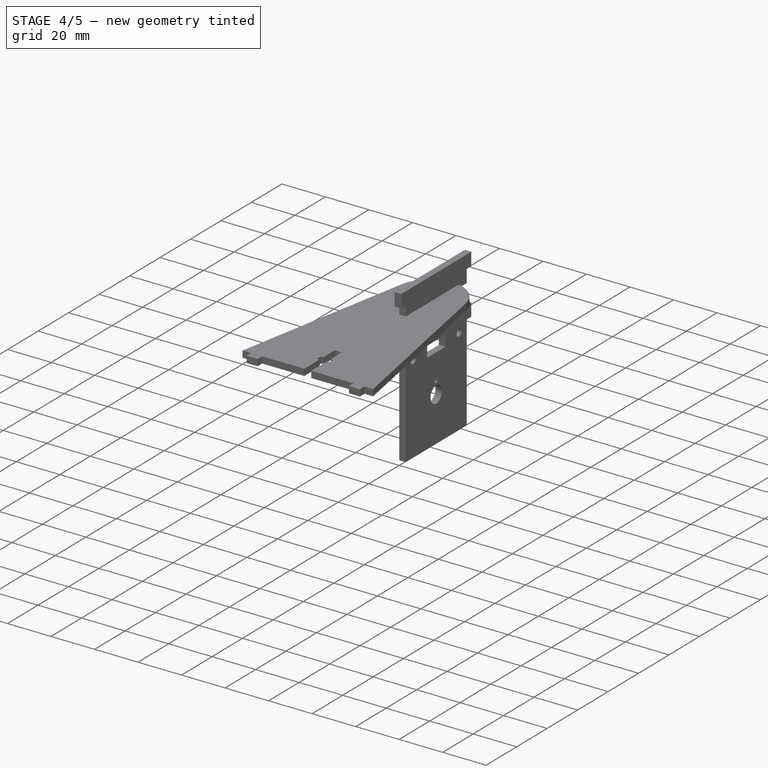
[diagram: stage 4 of 5 — iso view after this stage's code; geometry added in this stage tinted green]
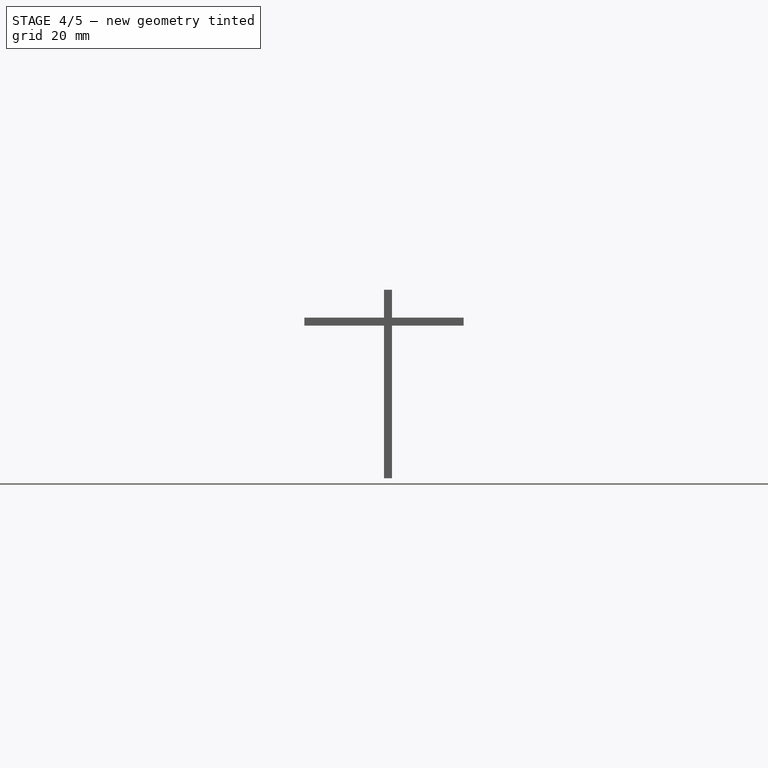
[diagram: stage 4 of 5 — front view after this stage's code; geometry added in this stage tinted green]
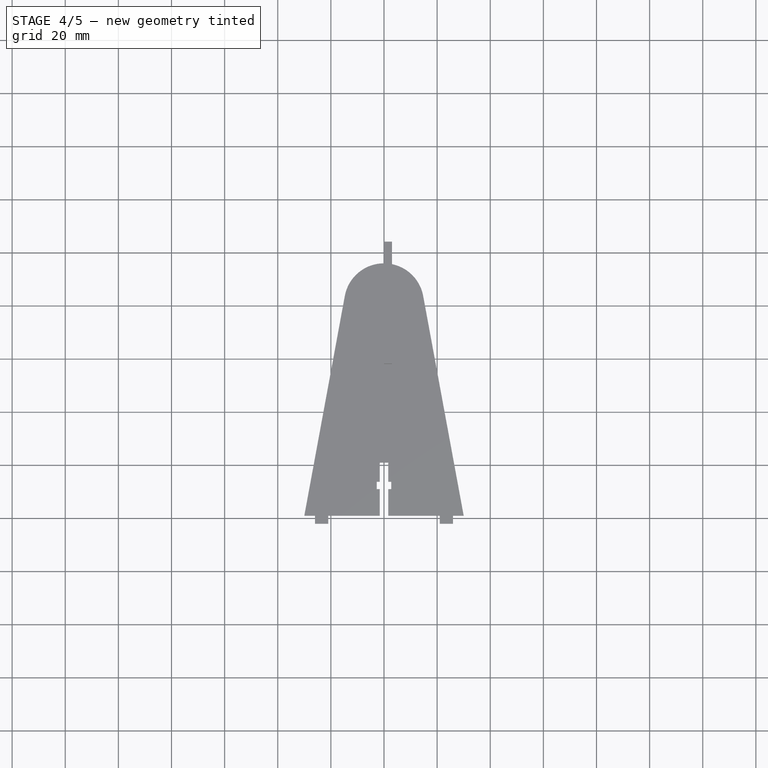
[diagram: stage 4 of 5 — top view after this stage's code; geometry added in this stage tinted green]
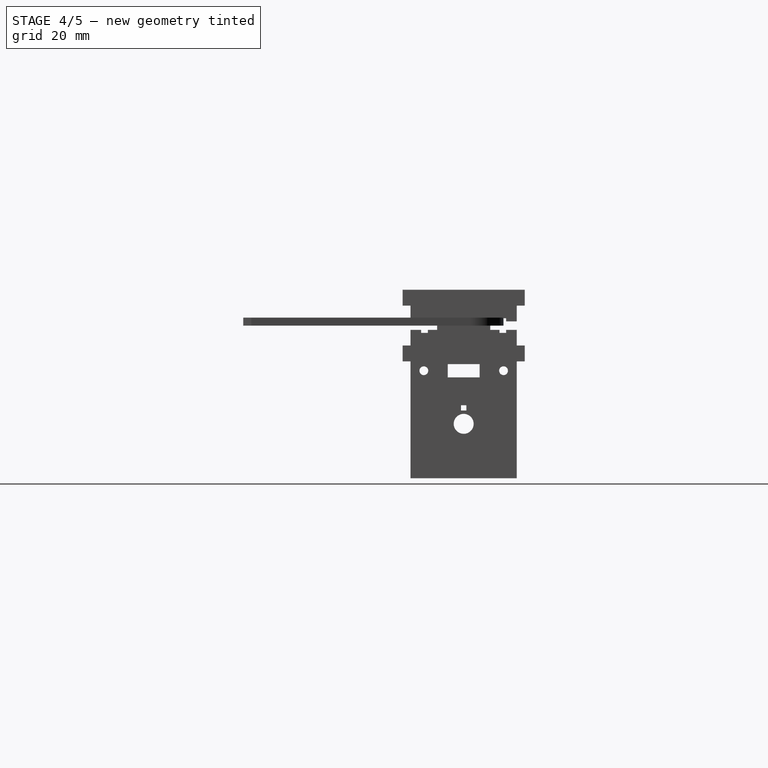
[diagram: stage 4 of 5 — right view after this stage's code; geometry added in this stage tinted green]
FEATURE [Sketcher::SketchObject] Sketch
  MapMode = 5
  Support = -> [XY_Plane]
  sketch-geometry (1):
    g0: Circle CenterX=0 CenterY=0 CenterZ=0 NormalX=0 NormalY=0 NormalZ=1 AngleXU=0 Radius=5.75
  constraints (2):
    c: Coincident(g0,g-1)
    c: Diameter(g0) = 11.5
FEATURE [PartDesign::Pad] Pad
  Length = 5
  Length2 = 100
  Profile = -> Sketch
  Refine = true
  Type = 0
FEATURE [Sketcher::SketchObject] Sketch001
  ExternalGeometry = -> [Pad]
  MapMode = 5
  Support = -> [XY_Plane]
  sketch-geometry (3):
    g0: Circle CenterX=0 CenterY=-6.35 CenterZ=0 NormalX=0 NormalY=0 NormalZ=1 AngleXU=0 Radius=2.9
    g1: GeomPoint X=0 Y=5.75 Z=0
    g2: GeomPoint X=0 Y=-9.25 Z=0
  constraints (7):
    c: PointOnObject(g0,g-2)
    c: Diameter(g0) = 5.8
    c: PointOnObject(g1,g-2)
    c: PointOnObject(g2,g-2)
    c: PointOnObject(g1,g-3)
    c: PointOnObject(g2,g0)
    c: DistanceY(g2,g1) = 15
FEATURE [PartDesign::Pad] Pad001
  BaseFeature = -> Pad
  Length = 5
  Length2 = 100
  Profile = -> Sketch001
  Refine = true
  Type = 0
FEATURE [Sketcher::SketchObject] Sketch002
  ExternalGeometry = -> [Pad001]
  MapMode = 5
  Support = -> [XY_Plane]
  sketch-geometry (4):
    g0: LineSegment StartX=-5.75 StartY=5.75 StartZ=0 EndX=5.75 EndY=5.75 EndZ=0
    g1: LineSegment StartX=5.75 StartY=5.75 StartZ=0 EndX=5.75 EndY=-17.25 EndZ=0
    g2: LineSegment StartX=5.75 StartY=-17.25 StartZ=0 EndX=-5.75 EndY=-17.25 EndZ=0
    g3: LineSegment StartX=-5.75 StartY=-17.25 StartZ=0 EndX=-5.75 EndY=5.75 EndZ=0
  constraints (12):
    c: Coincident(g0,g1)
    c: Coincident(g1,g2)
    c: Coincident(g2,g3)
    c: Coincident(g3,g0)
    c: Horizontal(g0)
    c: Horizontal(g2)
    c: Vertical(g1)
    c: Vertical(g3)
    c: Tangent(g0,g-3)
    c: Tangent(g3,g-3)
    c: Tangent(g1,g-3)
    c: DistanceY(g1,g1) = 23
FEATURE [PartDesign::Pad] Pad002
  BaseFeature = -> Pad001
  Length = 23.5
  Length2 = 100
  Profile = -> Sketch002
  Refine = true
  Reversed = true
  Type = 0
FEATURE [Sketcher::SketchObject] Sketch003
  ExternalGeometry = -> [Pad002]
  MapMode = 5
  Support = -> [XY_Plane]
  sketch-geometry (5):
    g0: LineSegment StartX=-5.75 StartY=10.25 StartZ=0 EndX=5.75 EndY=10.25 EndZ=0
    g1: LineSegment StartX=5.75 StartY=10.25 StartZ=0 EndX=5.75 EndY=-21.75 EndZ=0
    g2: LineSegment StartX=5.75 StartY=-21.75 StartZ=0 EndX=-5.75 EndY=-21.75 EndZ=0
    g3: LineSegment StartX=-5.75 StartY=-21.75 StartZ=0 EndX=-5.75 EndY=10.25 EndZ=0
    g4: GeomPoint X=5.75 Y=-5.75 Z=0
  constraints (12):
    c: Coincident(g0,g1)
    c: Coincident(g1,g2)
    c: Coincident(g2,g3)
    c: Coincident(g3,g0)
    c: Horizontal(g0)
    c: Horizontal(g2)
    c: Vertical(g1)
    c: Vertical(g3)
    c: DistanceY(g3,g3) = 32
    c: PointOnObject(g-4,g3)
    c: Symmetric(g-3,g-3,g4)
    c: Symmetric(g0,g1,g4)
FEATURE [PartDesign::Pad] Pad003
  BaseFeature = -> Pad002
  Length = 4.5
  Length2 = 100
  Profile = -> Sketch003
  Refine = true
  Reversed = true
  Type = 0
FEATURE [Sketcher::SketchObject] Sketch004
  ExternalGeometry = -> [Pad003]
  MapMode = 5
  Support = -> [XY_Plane]
  sketch-geometry (5):
    g0: Circle CenterX=0 CenterY=8.25 CenterZ=0 NormalX=0 NormalY=0 NormalZ=1 AngleXU=0 Radius=2
    g1: Circle CenterX=0 CenterY=-19.75 CenterZ=0 NormalX=0 NormalY=0 NormalZ=1 AngleXU=0 Radius=2
    g2: GeomPoint X=-5.75 Y=-5.75 Z=0
    g3: GeomPoint X=5.75 Y=-5.75 Z=0
    g4: LineSegment [constr] StartX=-5.75 StartY=-5.75 StartZ=0 EndX=5.75 EndY=-5.75 EndZ=0
  constraints (9):
    c: PointOnObject(g0,g-2)
    c: Equal(g0,g1)
    c: Coincident(g4,g2)
    c: Coincident(g4,g3)
    c: Symmetric(g-3,g-4,g2)
    c: Symmetric(g-6,g-5,g3)
    c: Symmetric(g0,g1,g4)
    c: Diameter(g0) = 4
    c: DistanceY(g1,g0) = 28
FEATURE [PartDesign::Pocket] Pocket
  BaseFeature = -> Pad003
  Length = 5
  Length2 = 100
  Profile = -> Sketch004
  Refine = true
  Type = 1
FEATURE [PartDesign::ShapeBinder] ShapeBinder
  Support = -> [Pocket]
  TraceSupport = false
FEATURE [Sketcher::SketchObject] Sketch008
  ExternalGeometry = -> [ShapeBinder]
  MapMode = 5
  Placement = pos=(0,0,0) rot=(1,0,0;3.14159rad)
  Support = -> [Pad005]
  sketch-geometry (4):
    g0: Circle CenterX=0 CenterY=-8.25 CenterZ=0 NormalX=0 NormalY=0 NormalZ=1 AngleXU=0 Radius=1.85
    g1: ArcOfCircle CenterX=0 CenterY=0 CenterZ=0 NormalX=0 NormalY=0 NormalZ=1 AngleXU=0 Radius=6 StartAngle=2.08356 EndAngle=7.34122
    g2: ArcOfCircle CenterX=0 CenterY=6.35 CenterZ=0 NormalX=0 NormalY=0 NormalZ=1 AngleXU=0 Radius=3.15 StartAngle=5.91912 EndAngle=9.78885
    g3: Circle CenterX=0 CenterY=19.75 CenterZ=0 NormalX=0 NormalY=0 NormalZ=1 AngleXU=0 Radius=1.85
  constraints (11):
    c: Coincident(g1,g-1)
    c: Coincident(g2,g-5)
    c: Coincident(g3,g-6)
    c: Equal(g0,g3)
    c: Diameter(g0) = 3.7
    c: Diameter(g1) = 12
    c: Diameter(g2) = 6.3
    c: Coincident(g0,g-3)
    c: Coincident(g1,g2)
    c: Coincident(g1,g2)
    c: Coincident(g1,g2)
FEATURE [PartDesign::Pocket] Pocket002
  BaseFeature = -> Pad005
  Length = 5
  Length2 = 100
  Profile = -> Sketch008
  Refine = true
  Type = 1
FEATURE [PartDesign::Body] Body002  label="Bearing mount"
  BaseFeature = -> Pad005
  Group = -> [Clone,Sketch007,Pocket001,Sketch015,Pocket008]
  Origin = -> Origin002
  Placement = pos=(0,0,57) rot=(0,0,1;0rad)
  Tip = -> Pocket008
  expr: Placement.Base.z = Values.mnt_width + 3
FEATURE [TechDraw::DrawViewPart] View001
  CoarseView = false
  Direction = (0,0,1)
  Focus = 100
  HardHidden = false
  IsoCount = 0
  IsoHidden = false
  IsoVisible = false
  LockPosition = false
  Perspective = false
  Rotation = 90
  ScaleType = 0
  SeamHidden = false
  SeamVisible = false
  SmoothHidden = false
  SmoothVisible = false
  Source = -> [Body002]
  X = 94.9395
  Y = 40.4283
FEATURE [Sketcher::SketchObject] Sketch016
  ExternalGeometry = -> [Pocket002]
  MapMode = 5
  Placement = pos=(0,0,0) rot=(1,0,0;3.14159rad)
  Support = -> [Pocket002]
  sketch-geometry (12):
    g0: LineSegment StartX=-1.6 StartY=80 StartZ=0 EndX=1.6 EndY=80 EndZ=0
    g1: LineSegment StartX=1.6 StartY=80 StartZ=0 EndX=1.6 EndY=70 EndZ=0
    g2: LineSegment StartX=1.6 StartY=60 StartZ=0 EndX=-1.6 EndY=60 EndZ=0
    g3: LineSegment StartX=-1.6 StartY=60 StartZ=0 EndX=-1.6 EndY=67.2 EndZ=0
    g4: LineSegment StartX=-2.75 StartY=70 StartZ=0 EndX=-1.6 EndY=70 EndZ=0
    g5: LineSegment StartX=2.75 StartY=70 StartZ=0 EndX=2.75 EndY=67.2 EndZ=0
    g6: LineSegment StartX=2.75 StartY=67.2 StartZ=0 EndX=1.6 EndY=67.2 EndZ=0
    g7: LineSegment StartX=-2.75 StartY=67.2 StartZ=0 EndX=-2.75 EndY=70 EndZ=0
    g8: LineSegment StartX=1.6 StartY=70 StartZ=0 EndX=2.75 EndY=70 EndZ=0
    g9: LineSegment StartX=-1.6 StartY=70 StartZ=0 EndX=-1.6 EndY=80 EndZ=0
    g10: LineSegment StartX=-1.6 StartY=67.2 StartZ=0 EndX=-2.75 EndY=67.2 EndZ=0
    g11: LineSegment StartX=1.6 StartY=67.2 StartZ=0 EndX=1.6 EndY=60 EndZ=0
  constraints (30):
    c: Coincident(g0,g1)
    c: Coincident(g11,g2)
    c: Coincident(g2,g3)
    c: Coincident(g9,g0)
    c: Horizontal(g0)
    c: Vertical(g1)
    c: Vertical(g3)
    c: PointOnObject(g0,g-3)
    c: Symmetric(g2,g11,g-2)
    c: DistanceX(g2,g2) = 3.2
    c: Coincident(g8,g5)
    c: Coincident(g5,g6)
    c: Coincident(g10,g7)
    c: Coincident(g7,g4)
    c: Horizontal(g4)
    c: Vertical(g5)
    c: Vertical(g7)
    c: Symmetric(g10,g5,g-2)
    c: DistanceX(g4,g8) = 5.5
    c: DistanceY(g5,g5) = 2.8
    c: DistanceY(g8,g0) = 10
    c: DistanceY(g11,g0) = 20
    c: Tangent(g4,g8)
    c: Coincident(g9,g4)
    c: Tangent(g3,g9)
    c: Coincident(g10,g3)
    c: Tangent(g6,g10)
    c: Coincident(g1,g8)
    c: Coincident(g11,g6)
    c: Tangent(g1,g11)
FEATURE [PartDesign::Pocket] Pocket009
  BaseFeature = -> Pocket002
  Length = 5
  Length2 = 100
  Profile = -> Sketch016
  Refine = true
  Type = 1
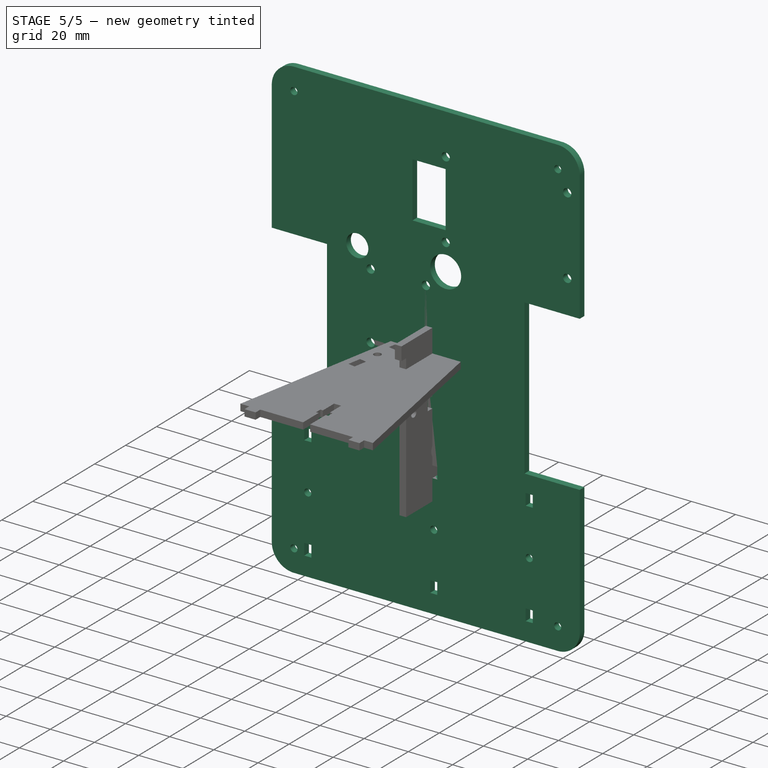
[diagram: stage 5 of 5 — iso view after this stage's code; geometry added in this stage tinted green]
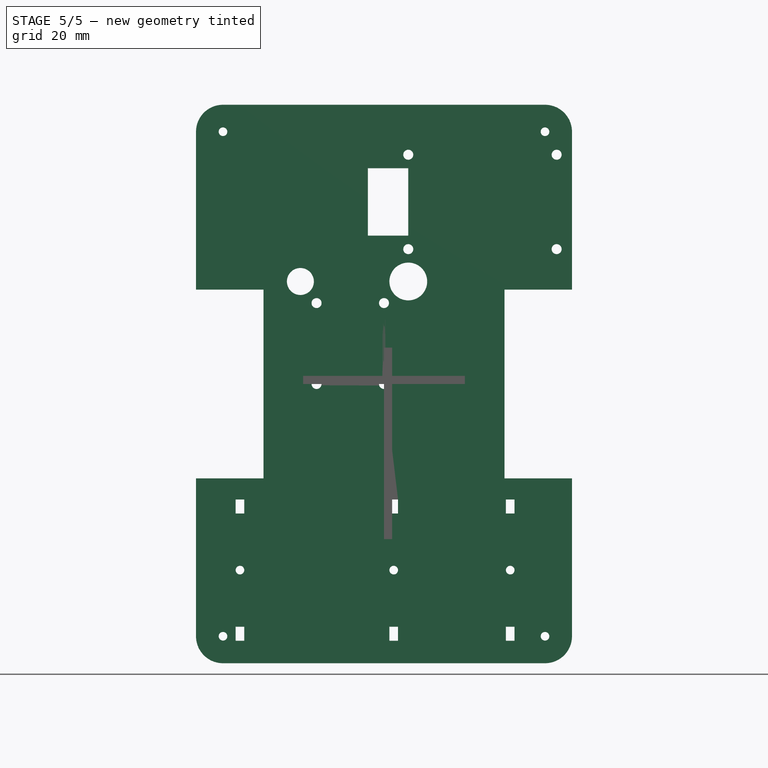
[diagram: stage 5 of 5 — front view after this stage's code; geometry added in this stage tinted green]
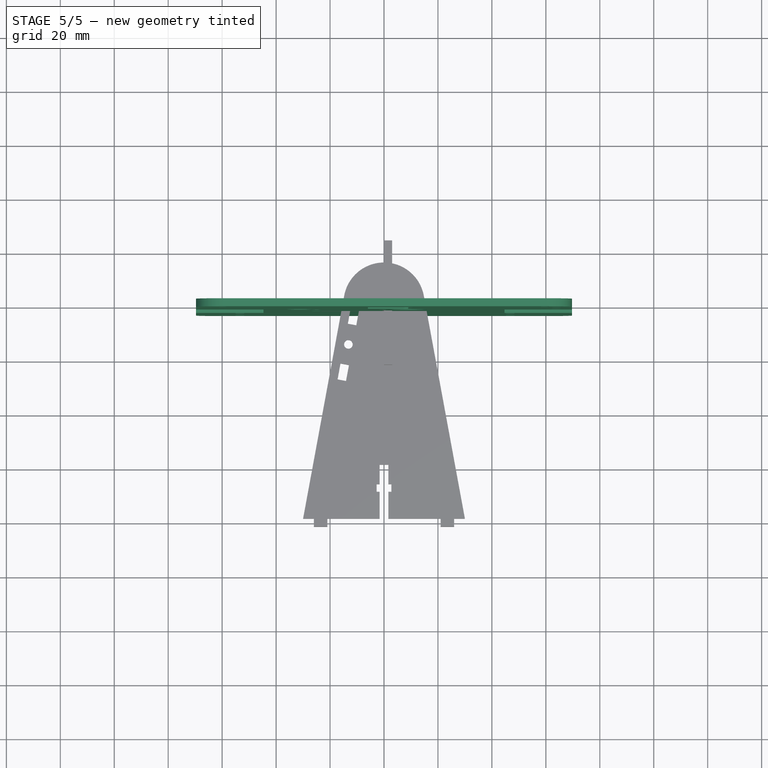
[diagram: stage 5 of 5 — top view after this stage's code; geometry added in this stage tinted green]
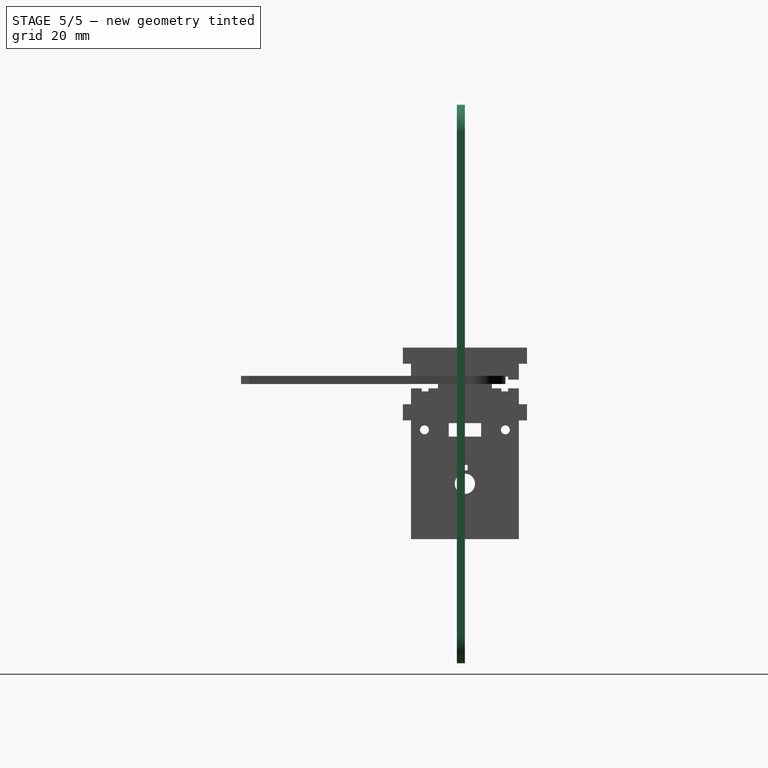
[diagram: stage 5 of 5 — right view after this stage's code; geometry added in this stage tinted green]
FEATURE [TechDraw::DrawSVGTemplate] Template
  Height = 210
  Orientation = 1
  Width = 297
FEATURE [Sketcher::SketchObject] Sketch009
  MapMode = 5
  Placement = pos=(0,0,0) rot=(1,0,0;1.5708rad)
  Support = -> [XZ_Plane003]
  expr: Constraints[9] = Values.base_length
  expr: Constraints[8] = Values.base_width
  sketch-geometry (16):
    g0: LineSegment [constr] StartX=-59.69 StartY=93.52 StartZ=0 EndX=59.69 EndY=93.52 EndZ=0
    g1: LineSegment [constr] StartX=59.69 StartY=93.52 StartZ=0 EndX=59.69 EndY=-93.52 EndZ=0
    g2: LineSegment [constr] StartX=59.69 StartY=-93.52 StartZ=0 EndX=-59.69 EndY=-93.52 EndZ=0
    g3: LineSegment [constr] StartX=-59.69 StartY=-93.52 StartZ=0 EndX=-59.69 EndY=93.52 EndZ=0
    g4: Circle CenterX=-59.69 CenterY=93.52 CenterZ=0 NormalX=0 NormalY=0 NormalZ=1 AngleXU=0 Radius=1.6
    g5: Circle CenterX=59.69 CenterY=93.52 CenterZ=0 NormalX=0 NormalY=0 NormalZ=1 AngleXU=0 Radius=1.6
    g6: Circle CenterX=59.69 CenterY=-93.52 CenterZ=0 NormalX=0 NormalY=0 NormalZ=1 AngleXU=0 Radius=1.6
    g7: Circle CenterX=-59.69 CenterY=-93.52 CenterZ=0 NormalX=0 NormalY=0 NormalZ=1 AngleXU=0 Radius=1.6
    g8: LineSegment StartX=-59.69 StartY=103.52 StartZ=0 EndX=59.69 EndY=103.52 EndZ=0
    g9: LineSegment StartX=69.69 StartY=93.52 StartZ=0 EndX=69.69 EndY=-93.52 EndZ=0
    g10: LineSegment StartX=59.69 StartY=-103.52 StartZ=0 EndX=-59.69 EndY=-103.52 EndZ=0
    g11: LineSegment StartX=-69.69 StartY=-93.52 StartZ=0 EndX=-69.69 EndY=93.52 EndZ=0
    g12: ArcOfCircle CenterX=-59.69 CenterY=93.52 CenterZ=0 NormalX=0 NormalY=0 NormalZ=1 AngleXU=0 Radius=10 StartAngle=1.5708 EndAngle=3.14159
    g13: ArcOfCircle CenterX=59.69 CenterY=93.52 CenterZ=0 NormalX=0 NormalY=0 NormalZ=1 AngleXU=0 Radius=10 StartAngle=0 EndAngle=1.5708
    g14: ArcOfCircle CenterX=59.69 CenterY=-93.52 CenterZ=0 NormalX=0 NormalY=0 NormalZ=1 AngleXU=0 Radius=10 StartAngle=4.71239 EndAngle=6.28319
    g15: ArcOfCircle CenterX=-59.69 CenterY=-93.52 CenterZ=0 NormalX=0 NormalY=0 NormalZ=1 AngleXU=0 Radius=10 StartAngle=3.14159 EndAngle=4.71239
  constraints (36):
    c: Coincident(g0,g1)
    c: Coincident(g1,g2)
    c: Coincident(g2,g3)
    c: Coincident(g3,g0)
    c: Horizontal(g0)
    c: Horizontal(g2)
    c: Vertical(g1)
    c: Vertical(g3)
    c: DistanceX(g2,g2) = 119.38
    c: DistanceY(g1,g1) = 187.04
    c: Symmetric(g0,g2,g-1)
    c: Coincident(g4,g0)
    c: Coincident(g5,g0)
    c: Coincident(g6,g1)
    c: Coincident(g7,g2)
    c: Equal(g7,g6)
    c: Equal(g6,g5)
    c: Equal(g5,g4)
    c: Diameter(g4) = 3.2
    c: Horizontal(g8)
    c: Horizontal(g10)
    c: Vertical(g9)
    c: Vertical(g11)
    c: Tangent(g8,g12) = 1.5708
    c: Tangent(g11,g12) = 1.5708
    c: Tangent(g8,g13) = 1.5708
    c: Tangent(g9,g13) = 1.5708
    c: Tangent(g9,g14) = 1.5708
    c: Tangent(g10,g14) = 1.5708
    c: Tangent(g10,g15) = 1.5708
    c: Tangent(g11,g15) = 1.5708
    c: Equal(g13,g14)
    c: Radius(g13) = 10
    c: Coincident(g14,g6)
    c: Coincident(g15,g7)
    c: Coincident(g4,g12)
FEATURE [PartDesign::Pad] Pad006
  Length = 3
  Length2 = 100
  Placement = pos=(0,0,0) rot=(1,0,0;1.5708rad)
  Profile = -> Sketch009
  Refine = true
  Type = 0
FEATURE [Sketcher::SketchObject] Sketch010
  ExternalGeometry = -> [Pad006]
  MapMode = 5
  Placement = pos=(0,0,0) rot=(1,0,0;1.5708rad)
  Support = -> [XZ_Plane003]
  sketch-geometry (8):
    g0: LineSegment StartX=-69.69 StartY=35 StartZ=0 EndX=-44.69 EndY=35 EndZ=0
    g1: LineSegment StartX=-44.69 StartY=35 StartZ=0 EndX=-44.69 EndY=-35 EndZ=0
    g2: LineSegment StartX=-44.69 StartY=-35 StartZ=0 EndX=-69.69 EndY=-35 EndZ=0
    g3: LineSegment StartX=-69.69 StartY=-35 StartZ=0 EndX=-69.69 EndY=35 EndZ=0
    g4: LineSegment StartX=69.69 StartY=35 StartZ=0 EndX=44.69 EndY=35 EndZ=0
    g5: LineSegment StartX=44.69 StartY=35 StartZ=0 EndX=44.69 EndY=-35 EndZ=0
    g6: LineSegment StartX=44.69 StartY=-35 StartZ=0 EndX=69.69 EndY=-35 EndZ=0
    g7: LineSegment StartX=69.69 StartY=-35 StartZ=0 EndX=69.69 EndY=35 EndZ=0
  constraints (22):
    c: Coincident(g0,g1)
    c: Coincident(g1,g2)
    c: Coincident(g2,g3)
    c: Coincident(g3,g0)
    c: Horizontal(g0)
    c: Horizontal(g2)
    c: Vertical(g1)
    c: PointOnObject(g0,g-3)
    c: Coincident(g4,g5)
    c: Coincident(g5,g6)
    c: Coincident(g6,g7)
    c: Coincident(g7,g4)
    c: Horizontal(g4)
    c: Horizontal(g6)
    c: Vertical(g5)
    c: PointOnObject(g4,g-4)
    c: Symmetric(g2,g0,g-1)
    c: Equal(g5,g1)
    c: Symmetric(g6,g4,g-1)
    c: Equal(g4,g0)
    c: DistanceX(g0,g0) = 25
    c: DistanceY(g1,g1) = 70
FEATURE [PartDesign::Pocket] Pocket003
  BaseFeature = -> Pad006
  Length = 5
  Length2 = 100
  Placement = pos=(0,0,0) rot=(1,0,0;1.5708rad)
  Profile = -> Sketch010
  Refine = true
  Reversed = true
  Type = 1
FEATURE [Sketcher::SketchObject] Sketch011
  MapMode = 5
  Placement = pos=(0,0,0) rot=(1,0,0;1.5708rad)
  Support = -> [XZ_Plane003]
  sketch-geometry (8):
    g0: LineSegment [constr] StartX=9 StartY=85 StartZ=0 EndX=64 EndY=85 EndZ=0
    g1: LineSegment [constr] StartX=64 StartY=85 StartZ=0 EndX=64 EndY=50 EndZ=0
    g2: LineSegment [constr] StartX=64 StartY=50 StartZ=0 EndX=9 EndY=50 EndZ=0
    g3: LineSegment [constr] StartX=9 StartY=50 StartZ=0 EndX=9 EndY=85 EndZ=0
    g4: Circle CenterX=9 CenterY=85 CenterZ=0 NormalX=0 NormalY=0 NormalZ=1 AngleXU=0 Radius=1.85
    g5: Circle CenterX=64 CenterY=85 CenterZ=0 NormalX=0 NormalY=0 NormalZ=1 AngleXU=0 Radius=1.85
    g6: Circle CenterX=64 CenterY=50 CenterZ=0 NormalX=0 NormalY=0 NormalZ=1 AngleXU=0 Radius=1.85
    g7: Circle CenterX=9 CenterY=50 CenterZ=0 NormalX=0 NormalY=0 NormalZ=1 AngleXU=0 Radius=1.85
  constraints (20):
    c: Coincident(g0,g1)
    c: Coincident(g1,g2)
    c: Coincident(g2,g3)
    c: Coincident(g3,g0)
    c: Horizontal(g0)
    c: Horizontal(g2)
    c: Vertical(g1)
    c: Vertical(g3)
    c: DistanceX(g0,g0) = 55
    c: DistanceY(g1,g1) = 35
    c: Coincident(g4,g0)
    c: Coincident(g6,g1)
    c: Coincident(g7,g2)
    c: Equal(g4,g5)
    c: Equal(g5,g6)
    c: Equal(g6,g7)
    c: Diameter(g4) = 3.7
    c: Coincident(g0,g5)
    c: DistanceX(g7) = 9
    c: DistanceY(g7) = 50
FEATURE [PartDesign::Pocket] Pocket004  label="pump holes"
  BaseFeature = -> Pocket003
  Length = 5
  Length2 = 100
  Placement = pos=(0,0,0) rot=(1,0,0;1.5708rad)
  Profile = -> Sketch011
  Refine = true
  Reversed = true
  Type = 1
FEATURE [Sketcher::SketchObject] Sketch012
  MapMode = 5
  Placement = pos=(0,-3,-7e-16) rot=(1,0,0;1.5708rad)
  Support = -> [Pocket004]
  expr: Constraints[1] = Values.mnt_width - 0.2
  sketch-geometry (35):
    g0: LineSegment [constr] StartX=-51.8 StartY=-48 StartZ=0 EndX=2 EndY=-48 EndZ=0
    g1: LineSegment StartX=-51.8 StartY=-48 StartZ=0 EndX=-55 EndY=-48 EndZ=0
    g2: LineSegment StartX=-55 StartY=-48 StartZ=0 EndX=-55 EndY=-42.8 EndZ=0
    g3: LineSegment StartX=-55 StartY=-42.8 StartZ=0 EndX=-51.8 EndY=-42.8 EndZ=0
    g4: LineSegment StartX=-51.8 StartY=-42.8 StartZ=0 EndX=-51.8 EndY=-48 EndZ=0
    g5: LineSegment StartX=2 StartY=-48 StartZ=0 EndX=5.2 EndY=-48 EndZ=0
    g6: LineSegment StartX=5.2 StartY=-48 StartZ=0 EndX=5.2 EndY=-42.8 EndZ=0
    g7: LineSegment StartX=5.2 StartY=-42.8 StartZ=0 EndX=2 EndY=-42.8 EndZ=0
    g8: LineSegment StartX=2 StartY=-42.8 StartZ=0 EndX=2 EndY=-48 EndZ=0
    g9: LineSegment StartX=2 StartY=-95.2 StartZ=0 EndX=5.2 EndY=-95.2 EndZ=0
    g10: LineSegment StartX=5.2 StartY=-95.2 StartZ=0 EndX=5.2 EndY=-90 EndZ=0
    g11: LineSegment StartX=5.2 StartY=-90 StartZ=0 EndX=2 EndY=-90 EndZ=0
    g12: LineSegment StartX=2 StartY=-90 StartZ=0 EndX=2 EndY=-95.2 EndZ=0
    g13: LineSegment StartX=-51.8 StartY=-95.2 StartZ=0 EndX=-55 EndY=-95.2 EndZ=0
    g14: LineSegment StartX=-55 StartY=-95.2 StartZ=0 EndX=-55 EndY=-90 EndZ=0
    g15: LineSegment StartX=-55 StartY=-90 StartZ=0 EndX=-51.8 EndY=-90 EndZ=0
    g16: LineSegment StartX=-51.8 StartY=-90 StartZ=0 EndX=-51.8 EndY=-95.2 EndZ=0
    g17: LineSegment [constr] StartX=-51.8 StartY=-48 StartZ=0 EndX=-51.8 EndY=-90 EndZ=0
    g18: LineSegment [constr] StartX=-51.8 StartY=-90 StartZ=0 EndX=2 EndY=-90 EndZ=0
    g19: LineSegment [constr] StartX=2 StartY=-90 StartZ=0 EndX=2 EndY=-48 EndZ=0
    g20: LineSegment [constr] StartX=5.2 StartY=-48 StartZ=0 EndX=45.2 EndY=-48 EndZ=0
    g21: LineSegment [constr] StartX=45.2 StartY=-48 StartZ=0 EndX=45.2 EndY=-90 EndZ=0
    g22: LineSegment [constr] StartX=45.2 StartY=-90 StartZ=0 EndX=5.2 EndY=-90 EndZ=0
    g23: LineSegment [constr] StartX=5.2 StartY=-90 StartZ=0 EndX=5.2 EndY=-48 EndZ=0
    g24: LineSegment StartX=48.4 StartY=-48 StartZ=0 EndX=45.2 EndY=-48 EndZ=0
    g25: LineSegment StartX=45.2 StartY=-48 StartZ=0 EndX=45.2 EndY=-42.8 EndZ=0
    g26: LineSegment StartX=45.2 StartY=-42.8 StartZ=0 EndX=48.4 EndY=-42.8 EndZ=0
    g27: LineSegment StartX=48.4 StartY=-42.8 StartZ=0 EndX=48.4 EndY=-48 EndZ=0
    g28: LineSegment StartX=45.2 StartY=-90 StartZ=0 EndX=48.4 EndY=-90 EndZ=0
    g29: LineSegment StartX=48.4 StartY=-90 StartZ=0 EndX=48.4 EndY=-95.2 EndZ=0
    g30: LineSegment StartX=48.4 StartY=-95.2 StartZ=0 EndX=45.2 EndY=-95.2 EndZ=0
    g31: LineSegment StartX=45.2 StartY=-95.2 StartZ=0 EndX=45.2 EndY=-90 EndZ=0
    g32: Circle CenterX=-53.4 CenterY=-69 CenterZ=0 NormalX=0 NormalY=0 NormalZ=1 AngleXU=0 Radius=1.6
    g33: Circle CenterX=3.6 CenterY=-69 CenterZ=0 NormalX=0 NormalY=0 NormalZ=1 AngleXU=0 Radius=1.6
    g34: Circle CenterX=46.8 CenterY=-69 CenterZ=0 NormalX=0 NormalY=0 NormalZ=1 AngleXU=0 Radius=1.6
  constraints (94):
    c: Horizontal(g0)
    c: DistanceX(g0,g0) = 53.8
    c: Coincident(g1,g2)
    c: Coincident(g2,g3)
    c: Coincident(g3,g4)
    c: Coincident(g4,g1)
    c: Horizontal(g1)
    c: Horizontal(g3)
    c: Vertical(g2)
    c: Vertical(g4)
    c: Coincident(g1,g0)
    c: Coincident(g5,g6)
    c: Coincident(g6,g7)
    c: Coincident(g7,g8)
    c: Coincident(g8,g5)
    c: Horizontal(g5)
    c: Horizontal(g7)
    c: Vertical(g6)
    c: Vertical(g8)
    c: Coincident(g5,g0)
    c: Coincident(g9,g10)
    c: Coincident(g10,g11)
    c: Coincident(g11,g12)
    c: Coincident(g12,g9)
    c: Horizontal(g9)
    c: Horizontal(g11)
    c: Vertical(g10)
    c: Vertical(g12)
    c: Coincident(g13,g14)
    c: Coincident(g14,g15)
    c: Coincident(g15,g16)
    c: Coincident(g16,g13)
    c: Horizontal(g13)
    c: Horizontal(g15)
    c: Vertical(g14)
    c: Vertical(g16)
    c: Equal(g16,g4)
    c: Equal(g4,g8)
    c: Equal(g8,g12)
    c: Equal(g3,g7)
    c: Equal(g7,g11)
    c: Equal(g11,g15)
    c: DistanceX(g3,g3) = 3.2
    c: DistanceY(g2,g2) = 5.2
    c: DistanceX(g5) = 2
    c: DistanceY(g5,g-1) = 48
    c: Coincident(g17,g1)
    c: Coincident(g17,g15)
    c: Vertical(g17)
    c: Coincident(g18,g15)
    c: Coincident(g18,g11)
    c: Horizontal(g18)
    c: Coincident(g19,g11)
    c: Coincident(g19,g5)
    c: Vertical(g19)
    c: DistanceY(g17,g17) = 42
    c: Coincident(g20,g21)
    c: Coincident(g21,g22)
    c: Coincident(g22,g23)
    c: Coincident(g23,g20)
    c: Horizontal(g20)
    c: Horizontal(g22)
    c: Vertical(g21)
    c: Coincident(g20,g5)
    c: Coincident(g22,g10)
    c: DistanceX(g22,g22) = 40
    c: Coincident(g24,g25)
    c: Coincident(g25,g26)
    c: Coincident(g26,g27)
    c: Coincident(g27,g24)
    c: Horizontal(g24)
    c: Horizontal(g26)
    c: Vertical(g25)
    c: Vertical(g27)
    c: Coincident(g20,g24)
    c: Coincident(g28,g29)
    c: Coincident(g29,g30)
    c: Coincident(g30,g31)
    c: Coincident(g31,g28)
    c: Horizontal(g28)
    c: Horizontal(g30)
    c: Vertical(g29)
    c: Vertical(g31)
    c: Equal(g10,g31)
    c: Equal(g31,g25)
    c: Equal(g26,g5)
    c: Equal(g5,g28)
    c: Coincident(g21,g28)
    c: Equal(g34,g33)
    c: Equal(g33,g32)
    c: Diameter(g32) = 3.2
    c: Symmetric(g1,g14,g32)
    c: Symmetric(g5,g11,g33)
    c: Symmetric(g24,g28,g34)
FEATURE [PartDesign::Pocket] Pocket005  label="mount tags"
  BaseFeature = -> Pocket004
  Length = 5
  Length2 = 100
  Placement = pos=(0,0,0) rot=(1,0,0;1.5708rad)
  Profile = -> Sketch012
  Refine = true
  Type = 1
FEATURE [Sketcher::SketchObject] Sketch013
  MapMode = 5
  Placement = pos=(0,-3,-7e-16) rot=(1,0,0;1.5708rad)
  Support = -> [Pocket005]
  sketch-geometry (8):
    g0: LineSegment [constr] StartX=-25 StartY=30 StartZ=0 EndX=0 EndY=30 EndZ=0
    g1: LineSegment [constr] StartX=0 StartY=30 StartZ=0 EndX=0 EndY=0 EndZ=0
    g2: LineSegment [constr] StartX=0 StartY=0 StartZ=0 EndX=-25 EndY=0 EndZ=0
    g3: LineSegment [constr] StartX=-25 StartY=0 StartZ=0 EndX=-25 EndY=30 EndZ=0
    g4: Circle CenterX=-25 CenterY=30 CenterZ=0 NormalX=0 NormalY=0 NormalZ=1 AngleXU=0 Radius=1.85
    g5: Circle CenterX=0 CenterY=30 CenterZ=0 NormalX=0 NormalY=0 NormalZ=1 AngleXU=0 Radius=1.85
    g6: Circle CenterX=0 CenterY=0 CenterZ=0 NormalX=0 NormalY=0 NormalZ=1 AngleXU=0 Radius=1.85
    g7: Circle CenterX=-25 CenterY=0 CenterZ=0 NormalX=0 NormalY=0 NormalZ=1 AngleXU=0 Radius=1.85
  constraints (19):
    c: Coincident(g0,g1)
    c: Coincident(g1,g2)
    c: Coincident(g2,g3)
    c: Coincident(g3,g0)
    c: Horizontal(g0)
    c: Horizontal(g2)
    c: Vertical(g1)
    c: Vertical(g3)
    c: Coincident(g4,g0)
    c: Coincident(g5,g0)
    c: Coincident(g6,g1)
    c: Coincident(g7,g2)
    c: Equal(g4,g5)
    c: Equal(g5,g6)
    c: Equal(g6,g7)
    c: Diameter(g4) = 3.7
    c: DistanceY(g1,g1) = 30
    c: DistanceX(g0,g0) = 25
    c: Coincident(g6,g-1)
FEATURE [PartDesign::Pocket] Pocket006  label="pcb holes"
  BaseFeature = -> Pocket005
  Length = 5
  Length2 = 100
  Placement = pos=(0,0,0) rot=(1,0,0;1.5708rad)
  Profile = -> Sketch013
  Refine = true
  Type = 1
FEATURE [Sketcher::SketchObject] Sketch017
  ExternalGeometry = -> [Pocket006]
  MapMode = 5
  Placement = pos=(0,0,0) rot=(-1,0,0;1.5708rad)
  sketch-geometry (7):
    g0: LineSegment StartX=-6 StartY=-55 StartZ=0 EndX=9 EndY=-55 EndZ=0
    g1: LineSegment StartX=9 StartY=-55 StartZ=0 EndX=9 EndY=-80 EndZ=0
    g2: LineSegment StartX=9 StartY=-80 StartZ=0 EndX=-6 EndY=-80 EndZ=0
    g3: LineSegment StartX=-6 StartY=-80 StartZ=0 EndX=-6 EndY=-55 EndZ=0
    g4: GeomPoint X=9 Y=-67.5 Z=0
    g5: Circle CenterX=9 CenterY=-38 CenterZ=0 NormalX=0 NormalY=0 NormalZ=1 AngleXU=0 Radius=7
    g6: Circle CenterX=-31 CenterY=-38 CenterZ=0 NormalX=0 NormalY=0 NormalZ=1 AngleXU=0 Radius=5
  constraints (18):
    c: Coincident(g0,g1)
    c: Coincident(g1,g2)
    c: Coincident(g2,g3)
    c: Coincident(g3,g0)
    c: Horizontal(g0)
    c: Horizontal(g2)
    c: Vertical(g1)
    c: Vertical(g3)
    c: Symmetric(g1,g0,g4)
    c: DistanceY(g3,g3) = 25
    c: DistanceX(g0,g0) = 15
    c: Diameter(g5) = 14
    c: Horizontal(g6,g5)
    c: DistanceX(g6,g0) = 40
    c: Symmetric(g-4,g-3,g4)
    c: Vertical(g0,g5)
    c: DistanceY(g-3,g5) = 12
    c: Diameter(g6) = 10
FEATURE [PartDesign::Pocket] Pocket010
  BaseFeature = -> Pocket006
  Length = 5
  Length2 = 100
  Placement = pos=(0,0,0) rot=(1,0,0;1.5708rad)
  Profile = -> Sketch017
  Refine = true
  Type = 1
FEATURE [PartDesign::ShapeBinder] ShapeBinder001
  Support = -> [Pocket011]
  TraceSupport = false
FEATURE [Sketcher::SketchObject] Sketch019
  ExternalGeometry = -> [ShapeBinder001]
  MapMode = 5
  Placement = pos=(0,0,3) rot=(0,0,1;0rad)
  Support = -> [Pocket009]
  sketch-geometry (9):
    g0: LineSegment StartX=-13.4173 StartY=-7.69512 StartZ=0 EndX=-12.3296 EndY=-1.79454 EndZ=0
    g1: LineSegment StartX=-12.3296 StartY=-1.79454 StartZ=0 EndX=-9.18265 EndY=-2.37466 EndZ=0
    g2: LineSegment StartX=-9.18265 StartY=-2.37466 StartZ=0 EndX=-10.2704 EndY=-8.27524 EndZ=0
    g3: LineSegment StartX=-10.2704 StartY=-8.27524 StartZ=0 EndX=-13.4173 EndY=-7.69512 EndZ=0
    g4: LineSegment StartX=-12.9897 StartY=-23.0267 StartZ=0 EndX=-16.1366 EndY=-22.4466 EndZ=0
    g5: LineSegment StartX=-16.1366 StartY=-22.4466 StartZ=0 EndX=-17.2244 EndY=-28.3472 EndZ=0
    g6: LineSegment StartX=-17.2244 StartY=-28.3472 StartZ=0 EndX=-14.0774 EndY=-28.9273 EndZ=0
    g7: LineSegment StartX=-14.0774 StartY=-28.9273 StartZ=0 EndX=-12.9897 EndY=-23.0267 EndZ=0
    g8: Circle CenterX=-13.2035 CenterY=-15.3609 CenterZ=0 NormalX=0 NormalY=0 NormalZ=1 AngleXU=0 Radius=1.6
  constraints (18):
    c: Coincident(g-3,g0)
    c: Coincident(g0,g-4)
    c: Coincident(g0,g1)
    c: Coincident(g1,g-4)
    c: Coincident(g1,g2)
    c: Coincident(g2,g-3)
    c: Coincident(g2,g3)
    c: Coincident(g3,g0)
    c: Coincident(g-6,g4)
    c: Coincident(g4,g-6)
    c: Coincident(g4,g5)
    c: Coincident(g5,g-7)
    c: Coincident(g5,g6)
    c: Coincident(g6,g-7)
    c: Coincident(g6,g7)
    c: Coincident(g7,g4)
    c: Equal(g8,g-5)
    c: Coincident(g8,g-5)
FEATURE [PartDesign::Pocket] Pocket012
  BaseFeature = -> Pocket009
  Length = 5
  Length2 = 100
  Profile = -> Sketch019
  Refine = true
  Type = 1
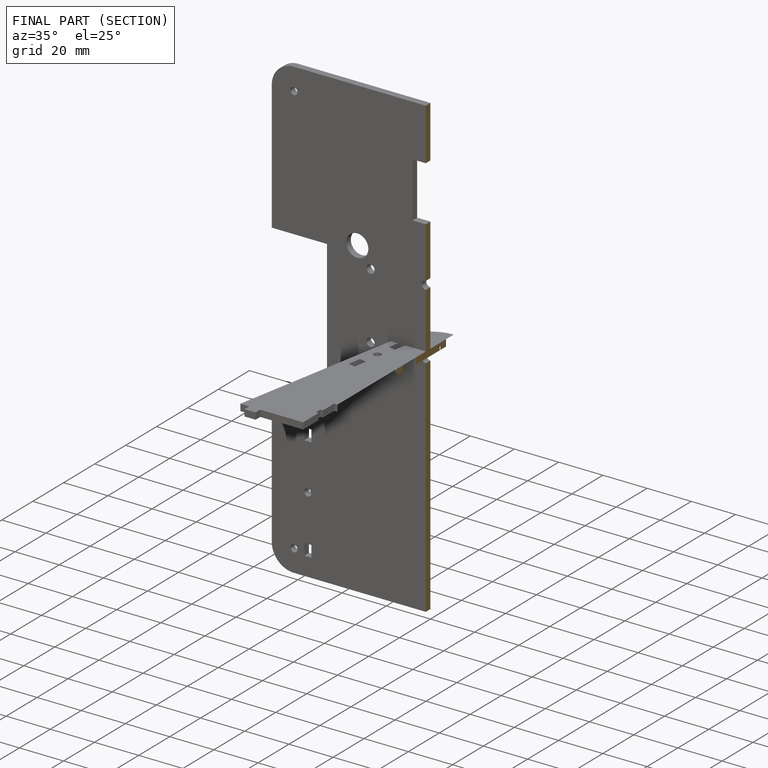
[diagram: finished part — half-section view (interior)]
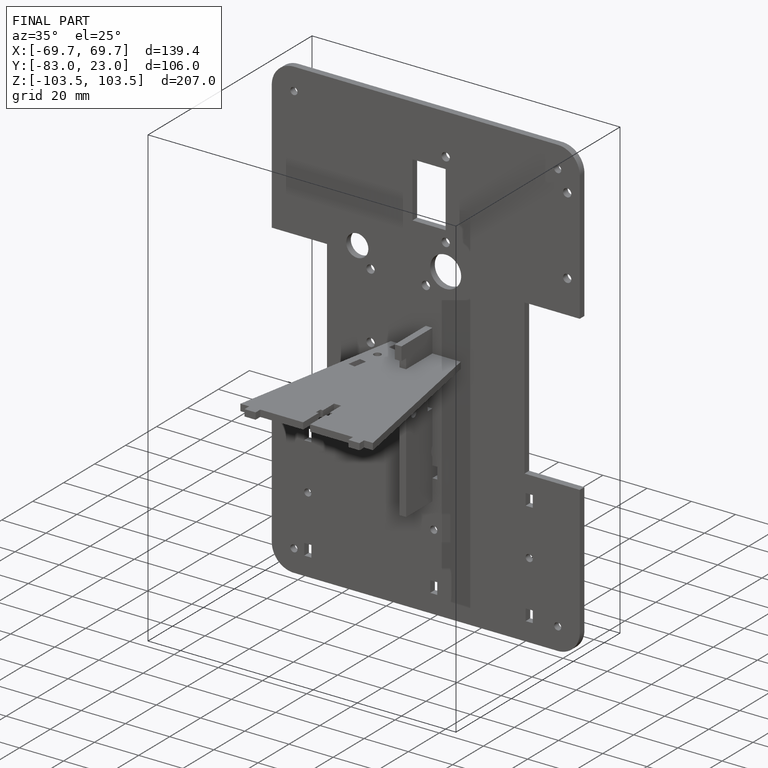
[diagram: finished part — iso view with bounding-box wireframe]
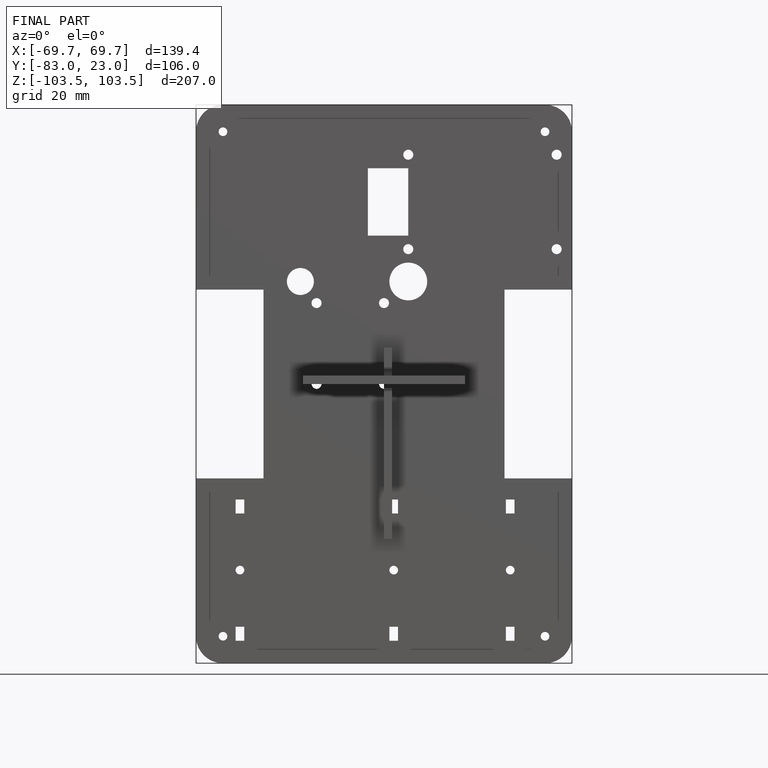
[diagram: finished part — front view with bounding-box wireframe]
